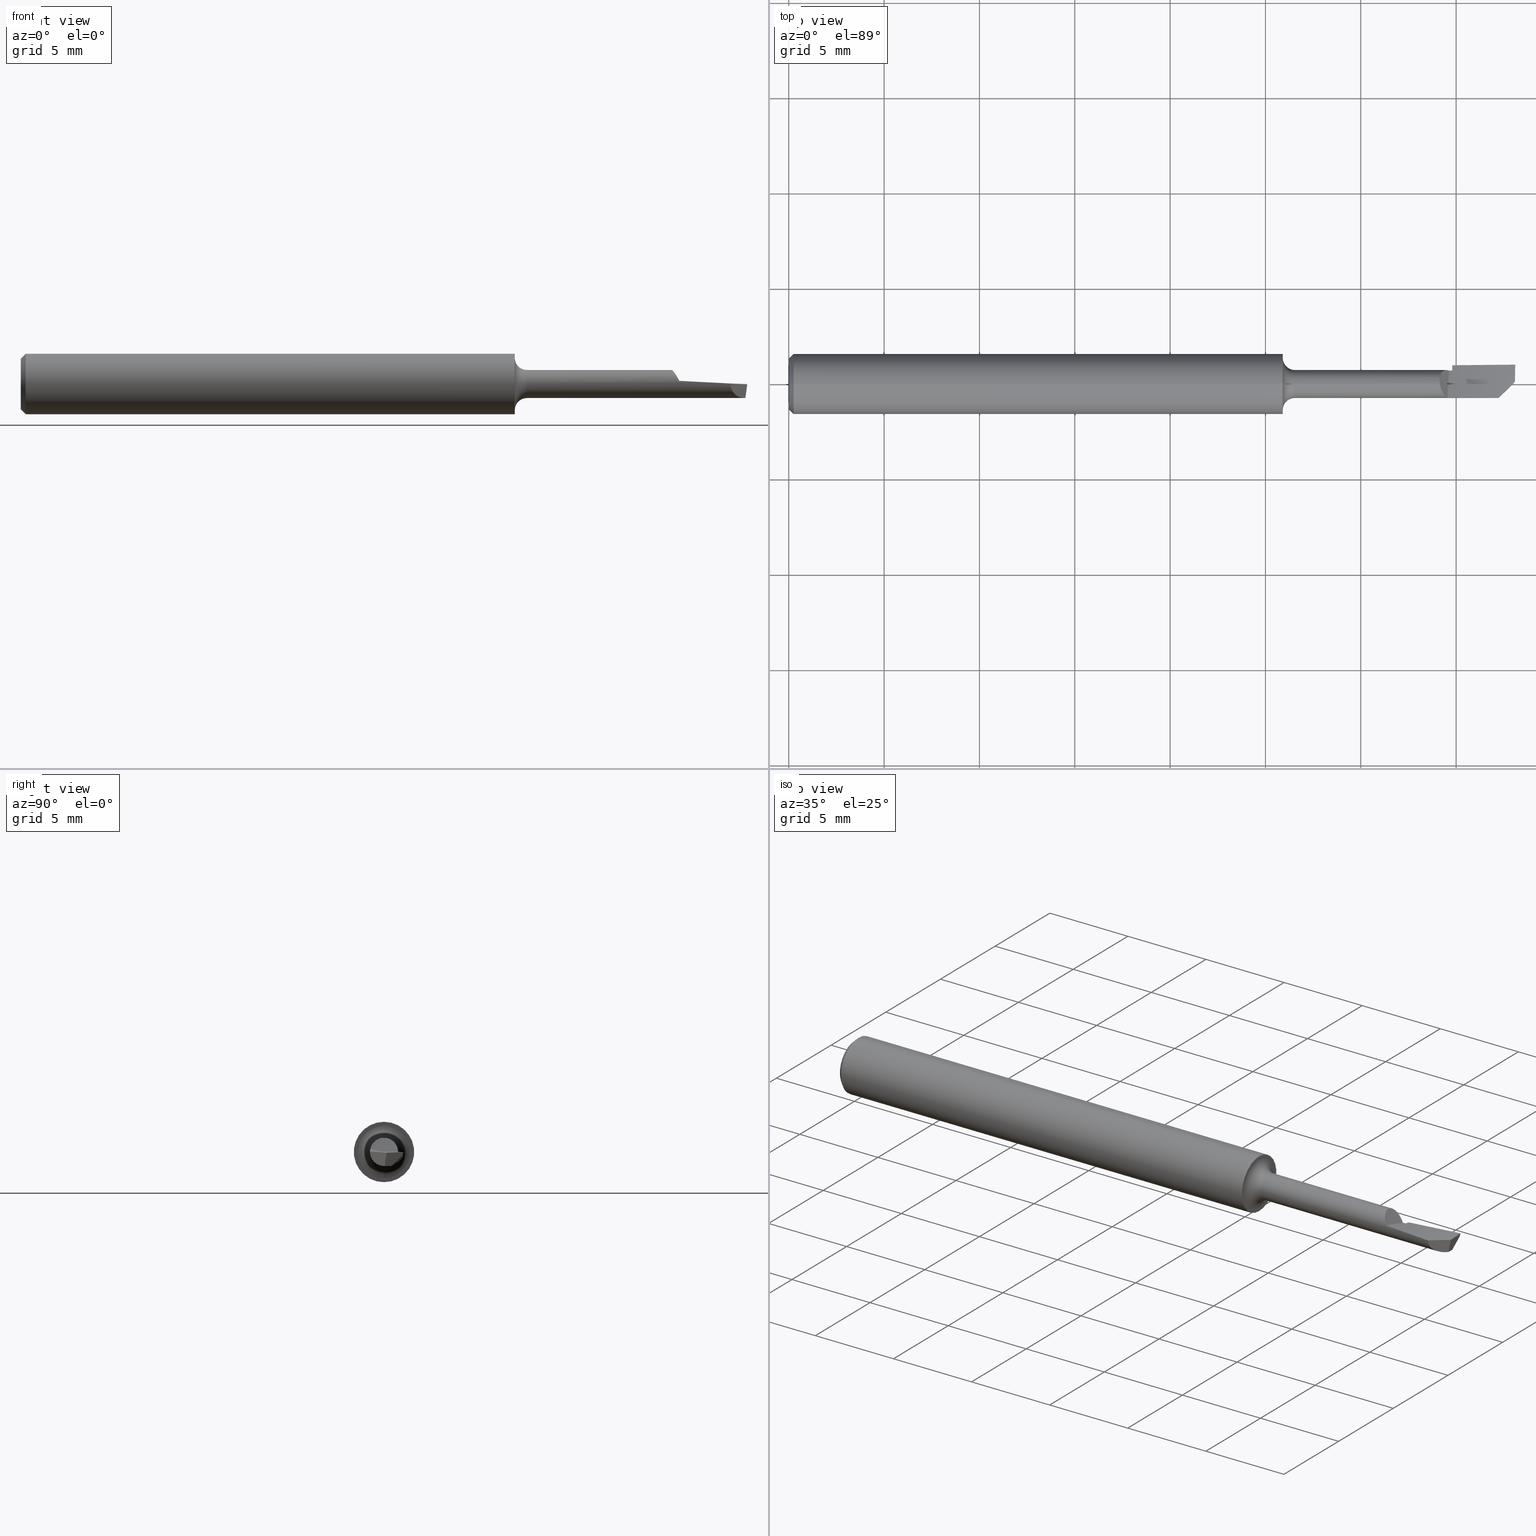
[diagram: canonical four-view strip — front | top / right | iso, engineering-drawing reading convention]
A machine part, canonical four-view strip (front | top / right | iso — engineering-drawing reading convention). The complete STEP part file that produces these views, byte-faithful:
ISO-10303-21;
HEADER;
FILE_DESCRIPTION (( 'STEP AP203' ),
    '1' );
FILE_NAME ('215988-HB70.STEP',
    '2024-08-12T21:30:40',
    ( '' ),
    ( '' ),
    'SwSTEP 2.0',
    'SolidWorks 2024',
    '' );
FILE_SCHEMA (( 'CONFIG_CONTROL_DESIGN' ));
ENDSEC;

DATA;
#1 = ORIENTED_EDGE ( 'NONE', *, *, #785, .T. ) ;
#2 = CARTESIAN_POINT ( 'NONE',  ( 0.05555555555555891090, -0.04000000000000000083, -4.898425415289509002E-18 ) ) ;
#3 = DIRECTION ( 'NONE',  ( 0.7071067811865461294, 8.659560562354950115E-17, 0.7071067811865489050 ) ) ;
#4 = CARTESIAN_POINT ( 'NONE',  ( 1.045000000000000373, 0.000000000000000000, 0.000000000000000000 ) ) ;
#5 = CARTESIAN_POINT ( 'NONE',  ( 0.8809523809523824855, 0.001447011921170035000, -0.03779748791122599511 ) ) ;
#6 = APPROVAL_ROLE ( '' ) ;
#7 = CARTESIAN_POINT ( 'NONE',  ( 1.175000000000000711, 0.1015806386774461834, -0.05416030337439214221 ) ) ;
#8 = DIRECTION ( 'NONE',  ( -1.000000000000000000, -0.000000000000000000, -0.000000000000000000 ) ) ;
#9 =( NAMED_UNIT ( * ) SI_UNIT ( $, .STERADIAN. ) SOLID_ANGLE_UNIT ( ) );
#10 = PERSON_AND_ORGANIZATION_ROLE ( 'design_supplier' ) ;
#11 = VERTEX_POINT ( 'NONE', #242 ) ;
#12 = CARTESIAN_POINT ( 'NONE',  ( 1.500000000000000000, -0.03809952085550567802, -0.005938488488639542470 ) ) ;
#13 = VERTEX_POINT ( 'NONE', #232 ) ;
#14 = LINE ( 'NONE', #81, #372 ) ;
#15 = EDGE_CURVE ( 'NONE', #383, #207, #676, .T. ) ;
#16 = CC_DESIGN_PERSON_AND_ORGANIZATION_ASSIGNMENT ( #555, #228, ( #752 ) ) ;
#17 = ORIENTED_EDGE ( 'NONE', *, *, #345, .T. ) ;
#18 = CARTESIAN_POINT ( 'NONE',  ( 1.347633158137484966, -0.01259069581526825292, 0.02618489251447412430 ) ) ;
#19 = CIRCLE ( 'NONE', #471, 0.02900000000000007086 ) ;
#20 = CARTESIAN_POINT ( 'NONE',  ( 1.351843152719554908, 0.02721280358920947010, 0.01011102640573735383 ) ) ;
#21 = CIRCLE ( 'NONE', #633, 0.02499999999999993894 ) ;
#22 = CARTESIAN_POINT ( 'NONE',  ( 1.370000000000000995, 0.02801306668690308962, -0.007501206222680386997 ) ) ;
#23 = B_SPLINE_CURVE_WITH_KNOTS ( 'NONE', 3,
 ( #263, #132, #554, #498, #258, #196, #428, #433, #507, #365, #677, #561, #315, #323, #20, #625, #558, #255, #441 ),
 .UNSPECIFIED., .F., .F.,
 ( 4, 2, 2, 2, 1, 1, 1, 2, 2, 2, 4 ),
 ( 0.000000000000000000, 0.2500000000000942579, 0.3750000000001443290, 0.4375000000001694755, 0.4687500000001820211, 0.4843750000001847411, 0.4921875000001861844, 0.4960937500001904032, 0.5000000000001946221, 0.7500000000000972555, 1.000000000000000000 ),
 .UNSPECIFIED. ) ;
#24 = VERTEX_POINT ( 'NONE', #235 ) ;
#25 = CYLINDRICAL_SURFACE ( 'NONE', #326, 0.06234999999999997489 ) ;
#26 = DIRECTION ( 'NONE',  ( -1.000000000000000000, -0.000000000000000000, -0.000000000000000000 ) ) ;
#27 = ORIENTED_EDGE ( 'NONE', *, *, #517, .F. ) ;
#28 = CARTESIAN_POINT ( 'NONE',  ( 1.435770711567972091, 0.04000000000000000777, -0.005683536644972281629 ) ) ;
#29 = CARTESIAN_POINT ( 'NONE',  ( 1.370000000000002105, 0.03163472708412574941, -0.008150383591435668429 ) ) ;
#30 = ORIENTED_EDGE ( 'NONE', *, *, #599, .T. ) ;
#31 = CARTESIAN_POINT ( 'NONE',  ( 1.500000000000000222, 0.04000000000000000083, 0.000000000000000000 ) ) ;
#32 = LINE ( 'NONE', #111, #581 ) ;
#33 = AXIS2_PLACEMENT_3D ( 'NONE', #250, #748, #491 ) ;
#34 = VERTEX_POINT ( 'NONE', #731 ) ;
#35 = CARTESIAN_POINT ( 'NONE',  ( -0.9761904761904703909, 0.02864906883118371883, 0.02469766772400545929 ) ) ;
#36 = CIRCLE ( 'NONE', #125, 0.04000000000000000083 ) ;
#37 = DIRECTION ( 'NONE',  ( -1.000000000000000000, -0.000000000000000000, -0.000000000000000000 ) ) ;
#38 = ORIENTED_EDGE ( 'NONE', *, *, #184, .F. ) ;
#39 = CARTESIAN_POINT ( 'NONE',  ( -0.3571428571428530430, -0.01770342807663131263, 0.03342652495002771534 ) ) ;
#40 = PLANE ( 'NONE',  #721 ) ;
#41 = CC_DESIGN_PERSON_AND_ORGANIZATION_ASSIGNMENT ( #667, #607, ( #681 ) ) ;
#42 = ORIENTED_EDGE ( 'NONE', *, *, #637, .T. ) ;
#43 = CARTESIAN_POINT ( 'NONE',  ( -0.6666666666666620777, 0.007180018042907871517, 0.03812775893959781393 ) ) ;
#44 = PERSON_AND_ORGANIZATION_ROLE ( 'design_owner' ) ;
#45 = DIRECTION ( 'NONE',  ( -0.7071067811865483499, -0.7071067811865467956, 0.000000000000000000 ) ) ;
#46 =( BOUNDED_CURVE ( )  B_SPLINE_CURVE ( 1, ( #779, #49 ),
 .UNSPECIFIED., .F., .T. ) 
 B_SPLINE_CURVE_WITH_KNOTS ( ( 2, 2 ),
 ( 0.002078555734266598204, 0.002706649194890225693 ),
 .UNSPECIFIED. ) 
 CURVE ( )  GEOMETRIC_REPRESENTATION_ITEM ( )  RATIONAL_B_SPLINE_CURVE ( ( 0.9882916646871111599, 0.9882916646871111599 ) ) 
 REPRESENTATION_ITEM ( '' )  );
#47 = ORIENTED_EDGE ( 'NONE', *, *, #493, .F. ) ;
#48 = CARTESIAN_POINT ( 'NONE',  ( 0.1587301587301617467, -0.03876952073988500225, -0.001484224528900523121 ) ) ;
#49 = CARTESIAN_POINT ( 'NONE',  ( 1.370000000000000995, 0.03375071523325731682, -0.01707727019001736152 ) ) ;
#50 = AXIS2_PLACEMENT_3D ( 'NONE', #417, #427, #538 ) ;
#51 = COORDINATED_UNIVERSAL_TIME_OFFSET ( 8, 0, .BEHIND. ) ;
#52 = ADVANCED_FACE ( 'NONE', ( #57 ), #419, .T. ) ;
#53 = CARTESIAN_POINT ( 'NONE',  ( 1.045000000000000373, 0.000000000000000000, 0.02900000000000007086 ) ) ;
#54 = CARTESIAN_POINT ( 'NONE',  ( 1.396825396825397192, -0.05697403369687401714, -0.07363607873360288048 ) ) ;
#55 = CARTESIAN_POINT ( 'NONE',  ( 0.9841269841269852936, 0.01007404188524794846, -0.03746721688285417629 ) ) ;
#56 = CARTESIAN_POINT ( 'NONE',  ( 0.000000000000000000, 0.000000000000000000, 0.000000000000000000 ) ) ;
#57 = FACE_OUTER_BOUND ( 'NONE', #697, .T. ) ;
#58 = CARTESIAN_POINT ( 'NONE',  ( 1.496221437132083665, 0.01505691397497161896, -0.02900000000000007086 ) ) ;
#59 = LINE ( 'NONE', #617, #594 ) ;
#60 = AXIS2_PLACEMENT_3D ( 'NONE', #595, #474, #541 ) ;
#61 = MANIFOLD_SOLID_BREP ( 'Front Angle', #792 ) ;
#62 = FACE_OUTER_BOUND ( 'NONE', #99, .T. ) ;
#63 = CARTESIAN_POINT ( 'NONE',  ( 1.087301587301588324, 0.01770342807663130916, -0.03342652495002772228 ) ) ;
#64 = APPLICATION_PROTOCOL_DEFINITION ( 'international standard', 'config_control_design', 1994, #707 ) ;
#65 = CARTESIAN_POINT ( 'NONE',  ( 1.496221437132083665, 0.01505691397497161896, -0.02900000000000007086 ) ) ;
#66 = ADVANCED_FACE ( 'NONE', ( #128 ), #249, .F. ) ;
#67 = CARTESIAN_POINT ( 'NONE',  ( 1.020000000000000240, 0.1123499999999999360, 0.000000000000000000 ) ) ;
#68 = CARTESIAN_POINT ( 'NONE',  ( 1.190476190476191576, 0.02533281426801466465, -0.02938583301720125787 ) ) ;
#69 = DATE_TIME_ROLE ( 'classification_date' ) ;
#70 = DIRECTION ( 'NONE',  ( -1.000000000000000000, -0.000000000000000000, -0.000000000000000000 ) ) ;
#71 = CARTESIAN_POINT ( 'NONE',  ( 1.500000000000000222, 0.03717181641915395102, -0.007000000000000001013 ) ) ;
#72 = DATE_TIME_ROLE ( 'creation_date' ) ;
#73 = B_SPLINE_CURVE_WITH_KNOTS ( 'NONE', 3,
 ( #425, #740, #203, #309 ),
 .UNSPECIFIED., .F., .F.,
 ( 4, 4 ),
 ( 0.000000000000000000, 1.000000000000000000 ),
 .UNSPECIFIED. ) ;
#74 = VERTEX_POINT ( 'NONE', #361 ) ;
#75 = CARTESIAN_POINT ( 'NONE',  ( 1.370000000000000773, 0.03889705483791568857, -0.009328404200943489488 ) ) ;
#76 = AXIS2_PLACEMENT_3D ( 'NONE', #302, #479, #743 ) ;
#77 = ADVANCED_FACE ( 'NONE', ( #62 ), #665, .F. ) ;
#78 = AXIS2_PLACEMENT_3D ( 'NONE', #652, #141, #206 ) ;
#79 = CARTESIAN_POINT ( 'NONE',  ( 1.465509546751889935, -0.02898045511657074830, 0.001064528645190079446 ) ) ;
#80 = ORIENTED_EDGE ( 'NONE', *, *, #282, .F. ) ;
#81 = CARTESIAN_POINT ( 'NONE',  ( 1.370000000000000329, 0.02900000000000000147, -0.02900000000000007086 ) ) ;
#82 = CC_DESIGN_PERSON_AND_ORGANIZATION_ASSIGNMENT ( #611, #10, ( #681 ) ) ;
#83 =( BOUNDED_SURFACE ( )  B_SPLINE_SURFACE ( 3, 2, ( 
 ( #364, #360, #135, #121, #602 ),
 ( #12, #739, #305, #194, #668 ),
 ( #357, #181, #476, #189, #727 ),
 ( #658, #612, #423, #7, #118 ) ),
 .UNSPECIFIED., .F., .F., .F. ) 
 B_SPLINE_SURFACE_WITH_KNOTS ( ( 4, 4 ),
 ( 3, 2, 3 ),
 ( 0.000000000000000000, 1.000000000000000000 ),
 ( 0.000000000000000000, 0.5000000000000000000, 1.000000000000000000 ),
 .UNSPECIFIED. ) 
 GEOMETRIC_REPRESENTATION_ITEM ( )  RATIONAL_B_SPLINE_SURFACE ( (
 ( 1.000000000000000000, 0.9807852804032304306, 1.000000000000000000, 0.9807852804032304306, 1.000000000000000000),
 ( 0.9829519941216796619, 0.9640648471775461470, 0.9829519941216796619, 0.9640648471775461470, 0.9829519941216796619),
 ( 0.9829519941216796619, 0.9640648471775461470, 0.9829519941216796619, 0.9640648471775461470, 0.9829519941216796619),
 ( 1.000000000000000000, 0.9807852804032304306, 1.000000000000000000, 0.9807852804032304306, 1.000000000000000000) ) ) 
 REPRESENTATION_ITEM ( '' )  SURFACE ( )  );
#84 = APPROVAL_DATE_TIME ( #694, #217 ) ;
#85 = ORIENTED_EDGE ( 'NONE', *, *, #237, .F. ) ;
#86 = PLANE ( 'NONE',  #440 ) ;
#87 = B_SPLINE_CURVE_WITH_KNOTS ( 'NONE', 3,
 ( #434, #683, #148, #382, #388, #378 ),
 .UNSPECIFIED., .F., .F.,
 ( 4, 2, 4 ),
 ( 0.9496888431844439094, 0.9748444215922219547, 1.000000000000000000 ),
 .UNSPECIFIED. ) ;
#88 = VERTEX_POINT ( 'NONE', #53 ) ;
#89 = DIRECTION ( 'NONE',  ( -1.000000000000000000, -0.000000000000000000, -0.000000000000000000 ) ) ;
#90 = CC_DESIGN_SECURITY_CLASSIFICATION ( #211, ( #681 ) ) ;
#91 = CARTESIAN_POINT ( 'NONE',  ( 1.496104123661977647, 0.001614121793516918668, -0.02900000000000007086 ) ) ;
#92 = LINE ( 'NONE', #693, #513 ) ;
#93 = VERTEX_POINT ( 'NONE', #533 ) ;
#94 = DIRECTION ( 'NONE',  ( 0.000000000000000000, -1.000000000000000000, 0.000000000000000000 ) ) ;
#95 = CARTESIAN_POINT ( 'NONE',  ( 1.366483144912173930, 0.02796552330872572115, -0.007678755777169924551 ) ) ;
#96 = ORIENTED_EDGE ( 'NONE', *, *, #459, .F. ) ;
#97 = CARTESIAN_POINT ( 'NONE',  ( 1.500000000000000222, 0.04000000000000000083, 0.000000000000000000 ) ) ;
#98 = CARTESIAN_POINT ( 'NONE',  ( 1.343999999999997641, 0.01736113023151577076, 0.02466362308646828649 ) ) ;
#99 = EDGE_LOOP ( 'NONE', ( #331, #313, #745, #85, #197 ) ) ;
#100 = CARTESIAN_POINT ( 'NONE',  ( -0.5634920634920589366, -0.001447011921170040204, 0.03779748791122599511 ) ) ;
#101 = CIRCLE ( 'NONE', #336, 0.06234999999999997489 ) ;
#102 = ADVANCED_FACE ( 'NONE', ( #240, #660 ), #477, .T. ) ;
#103 = CARTESIAN_POINT ( 'NONE',  ( 1.370000000000000107, 0.01208676131168339406, -0.02900000000000008127 ) ) ;
#104 = ORIENTED_EDGE ( 'NONE', *, *, #239, .T. ) ;
#105 = CARTESIAN_POINT ( 'NONE',  ( -1.079365079365073754, 0.03428615032184419154, 0.01815870471593352894 ) ) ;
#106 = DIRECTION ( 'NONE',  ( 0.000000000000000000, 0.000000000000000000, 1.000000000000000000 ) ) ;
#107 = ADVANCED_FACE ( 'NONE', ( #600 ), #182, .F. ) ;
#108 = ORIENTED_EDGE ( 'NONE', *, *, #493, .T. ) ;
#109 = CARTESIAN_POINT ( 'NONE',  ( 0.05555555555555891090, -0.03717181641915395102, 0.006999999999999996676 ) ) ;
#110 = DESIGN_CONTEXT ( 'detailed design', #161, 'design' ) ;
#111 = CARTESIAN_POINT ( 'NONE',  ( 0.01000000000000000021, 0.000000000000000000, -0.06235000000000000264 ) ) ;
#112 = EDGE_LOOP ( 'NONE', ( #369, #516 ) ) ;
#113 = CARTESIAN_POINT ( 'NONE',  ( 1.500000000000000222, 0.04000000000000000083, 0.000000000000000000 ) ) ;
#114 = ADVANCED_FACE ( 'NONE', ( #605 ), #486, .T. ) ;
#115 = VERTEX_POINT ( 'NONE', #566 ) ;
#116 = CARTESIAN_POINT ( 'NONE',  ( 1.087301587301588324, -0.08818753069738974326, -0.02149547931611790405 ) ) ;
#117 = CARTESIAN_POINT ( 'NONE',  ( 1.412082123250496091, 0.01272660337987287227, -0.02900000000000007086 ) ) ;
#118 = CARTESIAN_POINT ( 'NONE',  ( 1.066666666666667762, 0.08735133042885809274, -0.07153556330375904215 ) ) ;
#119 = CARTESIAN_POINT ( 'NONE',  ( 1.359812946886974183, -0.02825286555653415410, 0.006540304873964866011 ) ) ;
#120 = CARTESIAN_POINT ( 'NONE',  ( -0.5634920634920589366, -0.001447011921170040204, 0.03779748791122599511 ) ) ;
#121 = CARTESIAN_POINT ( 'NONE',  ( 1.175000000000000711, -0.08891082323312583802, 0.07312202218026980782 ) ) ;
#122 = EDGE_CURVE ( 'NONE', #24, #253, #73, .T. ) ;
#123 = DIRECTION ( 'NONE',  ( -0.7071067811865467956, 0.7071067811865483499, 0.000000000000000000 ) ) ;
#124 = CARTESIAN_POINT ( 'NONE',  ( 0.7777777777777796775, 2.512198775972656971E-18, -0.04102867453090215666 ) ) ;
#125 = AXIS2_PLACEMENT_3D ( 'NONE', #632, #756, #761 ) ;
#126 = CARTESIAN_POINT ( 'NONE',  ( 0.01000000000000000021, 7.635672792683746671E-18, 0.06235000000000000264 ) ) ;
#127 = EDGE_CURVE ( 'NONE', #445, #93, #682, .T. ) ;
#128 = FACE_OUTER_BOUND ( 'NONE', #334, .T. ) ;
#129 = CARTESIAN_POINT ( 'NONE',  ( -1.388888888888882400, 0.03717181641915395102, -0.007000000000000001013 ) ) ;
#130 = DIRECTION ( 'NONE',  ( -0.9925083585251990304, 0.008661489226065263378, 0.1218693434051474900 ) ) ;
#131 =( BOUNDED_CURVE ( )  B_SPLINE_CURVE ( 2, ( #390, #765, #208 ),
 .UNSPECIFIED., .F., .T. ) 
 B_SPLINE_CURVE_WITH_KNOTS ( ( 3, 3 ),
 ( 0.0003170804068850536107, 0.04489127974352288136 ),
 .UNSPECIFIED. ) 
 CURVE ( )  GEOMETRIC_REPRESENTATION_ITEM ( )  RATIONAL_B_SPLINE_CURVE ( ( 0.9997783918343574605, 0.9842713451966444982, 0.9882916646871111599 ) ) 
 REPRESENTATION_ITEM ( '' )  );
#132 = CARTESIAN_POINT ( 'NONE',  ( 1.344360962783671454, 0.01499331302564882798, 0.02504737014125070840 ) ) ;
#133 = CARTESIAN_POINT ( 'NONE',  ( 1.293650793650794162, 0.03045346318321878742, -0.02243502877305089335 ) ) ;
#134 = APPROVAL_STATUS ( 'not_yet_approved' ) ;
#135 = CARTESIAN_POINT ( 'NONE',  ( 1.283333333333334103, -0.09951814973318083568, 0.05332663141959952113 ) ) ;
#136 = EDGE_CURVE ( 'NONE', #455, #789, #481, .T. ) ;
#137 = ORIENTED_EDGE ( 'NONE', *, *, #345, .F. ) ;
#138 = DIRECTION ( 'NONE',  ( 0.000000000000000000, 0.000000000000000000, 1.000000000000000000 ) ) ;
#139 = CIRCLE ( 'NONE', #539, 0.02499999999999993894 ) ;
#140 =( BOUNDED_CURVE ( )  B_SPLINE_CURVE ( 2, ( #492, #95, #22 ),
 .UNSPECIFIED., .F., .T. ) 
 B_SPLINE_CURVE_WITH_KNOTS ( ( 3, 3 ),
 ( 0.6843654409706481090, 0.7004615063419189491 ),
 .UNSPECIFIED. ) 
 CURVE ( )  GEOMETRIC_REPRESENTATION_ITEM ( )  RATIONAL_B_SPLINE_CURVE ( ( 0.9792068466601346888, 0.9790463917204700328, 0.9789252863740102173 ) ) 
 REPRESENTATION_ITEM ( '' )  );
#141 = DIRECTION ( 'NONE',  ( -1.000000000000000000, -0.000000000000000000, -0.000000000000000000 ) ) ;
#142 = EDGE_LOOP ( 'NONE', ( #578, #156 ) ) ;
#143 = CARTESIAN_POINT ( 'NONE',  ( 1.020000000000000240, 0.000000000000000000, 0.000000000000000000 ) ) ;
#144 = CARTESIAN_POINT ( 'NONE',  ( 1.499482073662843584, 0.03835620992369383198, -0.004101183568616758278 ) ) ;
#145 = ORIENTED_EDGE ( 'NONE', *, *, #775, .F. ) ;
#146 = CARTESIAN_POINT ( 'NONE',  ( 1.344726164215734432, -0.003004772557673362522, 0.02899992847466936058 ) ) ;
#147 = CARTESIAN_POINT ( 'NONE',  ( 1.499852349702122556, 0.03953286335412243419, -0.001169269085852144962 ) ) ;
#148 = CARTESIAN_POINT ( 'NONE',  ( 1.344175667506401828, 0.0007500834462804991222, 0.02899269570108404734 ) ) ;
#149 = ORIENTED_EDGE ( 'NONE', *, *, #785, .F. ) ;
#150 = CARTESIAN_POINT ( 'NONE',  ( 1.370000000000003437, 0.03841683329958598542, -0.01114212364102202570 ) ) ;
#151 = ADVANCED_FACE ( 'NONE', ( #374 ), #439, .F. ) ;
#152 = VECTOR ( 'NONE', #3, 39.37007874015748143 ) ;
#153 = EDGE_LOOP ( 'NONE', ( #623, #755, #466, #627 ) ) ;
#154 = CARTESIAN_POINT ( 'NONE',  ( 1.499500392139578864, 0.005010390271118192115, -0.001582045523762461159 ) ) ;
#155 = CARTESIAN_POINT ( 'NONE',  ( 1.370000000000001439, 0.03526287220827594576, -0.008759464147967733344 ) ) ;
#156 = ORIENTED_EDGE ( 'NONE', *, *, #571, .T. ) ;
#157 = CARTESIAN_POINT ( 'NONE',  ( 0.2619047619047648601, -0.001332971076926094687, 0.09075967931653784737 ) ) ;
#158 = B_SPLINE_CURVE_WITH_KNOTS ( 'NONE', 3,
 ( #573, #564, #636, #318, #269, #384, #568, #699, #576, #200, #18, #332, #438, #146, #449 ),
 .UNSPECIFIED., .F., .F.,
 ( 4, 2, 2, 2, 1, 2, 2, 4 ),
 ( 0.000000000000000000, 0.2374222107961167783, 0.4748444215922335565, 0.5045221979417481295, 0.5341999742912627580, 0.5935555269902860198, 0.7122666323883386497, 0.9496888431844439094 ),
 .UNSPECIFIED. ) ;
#159 = EDGE_CURVE ( 'NONE', #24, #383, #23, .T. ) ;
#160 = CARTESIAN_POINT ( 'NONE',  ( 1.360835649877186748, -0.01054141025922300003, 0.0006367957585307692332 ) ) ;
#161 = APPLICATION_CONTEXT ( 'configuration controlled 3d designs of mechanical parts and assemblies' ) ;
#162 = EDGE_CURVE ( 'NONE', #213, #13, #391, .T. ) ;
#163 = CARTESIAN_POINT ( 'NONE',  ( 0.3650793650793676681, -0.03428615032184419847, -0.01815870471593352548 ) ) ;
#164 = CARTESIAN_POINT ( 'NONE',  ( 1.465509546751889935, -0.02898045511657074830, 0.001064528645190079446 ) ) ;
#165 = LOCAL_TIME ( 14, 30, 40.00000000000000000, #171 ) ;
#166 = CARTESIAN_POINT ( 'NONE',  ( 1.465509546751889935, -0.02898045511657074830, 0.001064528645190079446 ) ) ;
#167 = CARTESIAN_POINT ( 'NONE',  ( 0.5714285714285736173, -0.02301198734052324960, -0.03123663073207738616 ) ) ;
#168 = LINE ( 'NONE', #763, #262 ) ;
#169 = ORIENTED_EDGE ( 'NONE', *, *, #159, .T. ) ;
#170 = CARTESIAN_POINT ( 'NONE',  ( -1.285714285714279148, 0.03876952073988499531, 0.001484224528900528976 ) ) ;
#171 = COORDINATED_UNIVERSAL_TIME_OFFSET ( 8, 0, .BEHIND. ) ;
#172 = UNCERTAINTY_MEASURE_WITH_UNIT (LENGTH_MEASURE( 1.000000000000000082E-05 ), #267, 'distance_accuracy_value', 'NONE');
#173 = VERTEX_POINT ( 'NONE', #91 ) ;
#174 = CARTESIAN_POINT ( 'NONE',  ( -0.7698412698412646638, 0.07178986850100783912, -0.05554557572067023857 ) ) ;
#175 = CALENDAR_DATE ( 2024, 12, 8 ) ;
#176 = CARTESIAN_POINT ( 'NONE',  ( 0.01000000000000000021, 0.000000000000000000, 0.000000000000000000 ) ) ;
#177 = AXIS2_PLACEMENT_3D ( 'NONE', #501, #8, #621 ) ;
#178 = B_SPLINE_SURFACE_WITH_KNOTS ( 'NONE', 1, 3, ( 
 ( #701, #515, #98, #333 ),
 ( #587, #160, #577, #649 ) ),
 .UNSPECIFIED., .F., .F., .F.,
 ( 2, 2 ),
 ( 4, 4 ),
 ( 0.000000000000000000, 1.000000000000000000 ),
 ( 0.002462417689839131296, 0.004008019908596999539 ),
 .UNSPECIFIED. ) ;
#179 = DIRECTION ( 'NONE',  ( 0.000000000000000000, 0.000000000000000000, 1.000000000000000000 ) ) ;
#180 = CARTESIAN_POINT ( 'NONE',  ( -0.8730158730158678049, 0.01780167471650514685, 0.03696555844364372845 ) ) ;
#181 = CARTESIAN_POINT ( 'NONE',  ( 1.391666666666667052, 0.03691828205157376280, -0.01351695437803885139 ) ) ;
#182 = PLANE ( 'NONE',  #410 ) ;
#183 = CARTESIAN_POINT ( 'NONE',  ( 0.1587301587301617467, -0.04000000000000000083, -0.009129738975606004059 ) ) ;
#184 = EDGE_CURVE ( 'NONE', #453, #268, #604, .T. ) ;
#185 = CARTESIAN_POINT ( 'NONE',  ( 1.020000000000000462, 0.000000000000000000, 0.000000000000000000 ) ) ;
#186 = CARTESIAN_POINT ( 'NONE',  ( -0.8730158730158678049, 0.02301198734052324960, 0.03123663073207738616 ) ) ;
#187 = APPROVAL_DATE_TIME ( #616, #726 ) ;
#188 = AXIS2_PLACEMENT_3D ( 'NONE', #431, #680, #138 ) ;
#189 = CARTESIAN_POINT ( 'NONE',  ( 1.175000000000000933, 0.02893533066641755871, -0.02661605238427766640 ) ) ;
#190 =( BOUNDED_CURVE ( )  B_SPLINE_CURVE ( 2, ( #370, #28, #696 ),
 .UNSPECIFIED., .F., .T. ) 
 B_SPLINE_CURVE_WITH_KNOTS ( ( 3, 3 ),
 ( 0.000000000000000000, 0.04489127974352208339 ),
 .UNSPECIFIED. ) 
 CURVE ( )  GEOMETRIC_REPRESENTATION_ITEM ( )  RATIONAL_B_SPLINE_CURVE ( ( 1.000000000000000000, 0.9842427464880012522, 0.9882916646871109378 ) ) 
 REPRESENTATION_ITEM ( '' )  );
#191 = DIRECTION ( 'NONE',  ( 0.000000000000000000, 0.000000000000000000, 1.000000000000000000 ) ) ;
#192 = CARTESIAN_POINT ( 'NONE',  ( -0.04761904761904422329, -0.04000000000000000083, 0.009129738975605993651 ) ) ;
#193 = EDGE_CURVE ( 'NONE', #173, #74, #168, .T. ) ;
#194 = CARTESIAN_POINT ( 'NONE',  ( 1.175000000000000933, -0.03566309769012571823, 0.01654723748672481259 ) ) ;
#195 = CC_DESIGN_DATE_AND_TIME_ASSIGNMENT ( #363, #69, ( #211 ) ) ;
#196 = CARTESIAN_POINT ( 'NONE',  ( 1.348826993607886049, 0.02449701040838764970, 0.01554878266840352408 ) ) ;
#197 = ORIENTED_EDGE ( 'NONE', *, *, #553, .T. ) ;
#198 = CARTESIAN_POINT ( 'NONE',  ( 1.045000000000000373, 0.000000000000000000, 0.000000000000000000 ) ) ;
#199 = ORIENTED_EDGE ( 'NONE', *, *, #626, .T. ) ;
#200 = CARTESIAN_POINT ( 'NONE',  ( 1.348641358214019315, -0.01492363627752968554, 0.02488129085342630220 ) ) ;
#201 = CIRCLE ( 'NONE', #582, 0.05234999999999996600 ) ;
#202 = AXIS2_PLACEMENT_3D ( 'NONE', #327, #26, #191 ) ;
#203 = CARTESIAN_POINT ( 'NONE',  ( 1.343999999999999417, 0.005462478541139549615, 0.02804805163909921545 ) ) ;
#204 = VERTEX_POINT ( 'NONE', #525 ) ;
#205 = CARTESIAN_POINT ( 'NONE',  ( 0.000000000000000000, 7.635672792683743590E-18, -0.06234999999999997489 ) ) ;
#206 = DIRECTION ( 'NONE',  ( 0.000000000000000000, 0.000000000000000000, 1.000000000000000000 ) ) ;
#207 = VERTEX_POINT ( 'NONE', #216 ) ;
#208 = CARTESIAN_POINT ( 'NONE',  ( 1.370000000000000995, 0.03375071523325731682, -0.01707727019001736152 ) ) ;
#209 = EDGE_LOOP ( 'NONE', ( #411, #711, #443, #572, #324, #436, #695 ) ) ;
#210 = CARTESIAN_POINT ( 'NONE',  ( 1.370000000000000773, 0.03889705483791568857, -0.009328404200943489488 ) ) ;
#211 = SECURITY_CLASSIFICATION ( '', '', #484 ) ;
#212 = AXIS2_PLACEMENT_3D ( 'NONE', #720, #706, #106 ) ;
#213 = VERTEX_POINT ( 'NONE', #452 ) ;
#214 = CARTESIAN_POINT ( 'NONE',  ( 0.1587301587301617467, 0.01938233346481633632, 0.09106392126639703544 ) ) ;
#215 = EDGE_CURVE ( 'NONE', #173, #789, #403, .T. ) ;
#216 = CARTESIAN_POINT ( 'NONE',  ( 1.359812946886974183, -0.02825286555653415410, 0.006540304873964866011 ) ) ;
#217 = APPROVAL ( #307, 'UNSPECIFIED' ) ;
#218 = VERTEX_POINT ( 'NONE', #103 ) ;
#219 = CARTESIAN_POINT ( 'NONE',  ( 1.190476190476191576, 0.02533281426801466465, -0.02938583301720125787 ) ) ;
#220 = CARTESIAN_POINT ( 'NONE',  ( 1.045000000000000373, 6.613092715395708083E-18, -0.05400000000000000633 ) ) ;
#221 = DIRECTION ( 'NONE',  ( 1.000000000000000000, 0.000000000000000000, 0.000000000000000000 ) ) ;
#222 = PERSON ( 'UNSPECIFIED', 'UNSPECIFIED', 'UNSPECIFIED', ('UNSPECIFIED'), ('UNSPECIFIED'), ('UNSPECIFIED') ) ;
#223 = ORIENTED_EDGE ( 'NONE', *, *, #122, .F. ) ;
#224 = CARTESIAN_POINT ( 'NONE',  ( -1.079365079365073754, 0.02204827561866853219, -0.09045543736667864543 ) ) ;
#225 = AXIS2_PLACEMENT_3D ( 'NONE', #176, #241, #630 ) ;
#226 = CONICAL_SURFACE ( 'NONE', #301, 0.06235000000000000264, 0.7853981633974502774 ) ;
#227 = CARTESIAN_POINT ( 'NONE',  ( -0.04761904761904422329, 0.05697403369687400326, 0.07363607873360288048 ) ) ;
#228 = PERSON_AND_ORGANIZATION_ROLE ( 'creator' ) ;
#229 = ORIENTED_EDGE ( 'NONE', *, *, #543, .F. ) ;
#230 = CARTESIAN_POINT ( 'NONE',  ( -1.388888888888882400, 0.03717181641915395102, -0.007000000000000001013 ) ) ;
#231 = CALENDAR_DATE ( 2024, 12, 8 ) ;
#232 = CARTESIAN_POINT ( 'NONE',  ( 1.500000000000000222, 0.04000000000000000083, 0.000000000000000000 ) ) ;
#233 = CARTESIAN_POINT ( 'NONE',  ( 1.190476190476191576, 0.03207750943219353501, -0.02558096015379865765 ) ) ;
#234 = CARTESIAN_POINT ( 'NONE',  ( 1.476798262906834136, -0.01769173896162653387, -0.0009050575358411995551 ) ) ;
#235 = CARTESIAN_POINT ( 'NONE',  ( 1.344000000000000306, 0.01194798285641748316, 0.02642433926634223107 ) ) ;
#236 = CARTESIAN_POINT ( 'NONE',  ( 0.3650793650793676681, -0.03428615032184419847, -0.01815870471593352548 ) ) ;
#237 = EDGE_CURVE ( 'NONE', #268, #789, #281, .T. ) ;
#238 = PLANE ( 'NONE',  #489 ) ;
#239 = EDGE_CURVE ( 'NONE', #268, #536, #337, .T. ) ;
#240 = FACE_BOUND ( 'NONE', #563, .T. ) ;
#241 = DIRECTION ( 'NONE',  ( 1.000000000000000000, 0.000000000000000000, 0.000000000000000000 ) ) ;
#242 = CARTESIAN_POINT ( 'NONE',  ( 1.020000000000000240, 0.000000000000000000, 0.06234999999999997489 ) ) ;
#243 = CARTESIAN_POINT ( 'NONE',  ( 0.6746031746031765364, -0.01509600269171556403, -0.03468219483583759311 ) ) ;
#244 = DATE_AND_TIME ( #231, #503 ) ;
#245 = DIRECTION ( 'NONE',  ( -1.000000000000000000, -0.000000000000000000, -0.000000000000000000 ) ) ;
#246 = DIRECTION ( 'NONE',  ( 1.000000000000000000, 0.000000000000000000, -0.000000000000000000 ) ) ;
#247 = CARTESIAN_POINT ( 'NONE',  ( -1.079365079365073754, 0.03207750943219352807, 0.02558096015379866459 ) ) ;
#248 = FACE_OUTER_BOUND ( 'NONE', #112, .T. ) ;
#249 = TOROIDAL_SURFACE ( 'NONE', #371, 0.05400000000000000633, 0.02499999999999993894 ) ;
#250 = CARTESIAN_POINT ( 'NONE',  ( 1.045000000000000373, 0.000000000000000000, 0.000000000000000000 ) ) ;
#251 = CARTESIAN_POINT ( 'NONE',  ( 1.494490001868460816, 1.707404996040164512E-17, -0.02900000000000007086 ) ) ;
#252 = PERSON_AND_ORGANIZATION ( #222, #685 ) ;
#253 = VERTEX_POINT ( 'NONE', #447 ) ;
#254 = FACE_OUTER_BOUND ( 'NONE', #522, .T. ) ;
#255 = CARTESIAN_POINT ( 'NONE',  ( 1.359724827283130377, 0.02932526709454047129, -0.002847079724959575633 ) ) ;
#256 = ORIENTED_EDGE ( 'NONE', *, *, #553, .F. ) ;
#257 = DIRECTION ( 'NONE',  ( 0.000000000000000000, 0.000000000000000000, -1.000000000000000000 ) ) ;
#258 = CARTESIAN_POINT ( 'NONE',  ( 1.347622489973717697, 0.02292405174080325986, 0.01785946520634259030 ) ) ;
#259 = ORIENTED_EDGE ( 'NONE', *, *, #322, .F. ) ;
#260 = DIRECTION ( 'NONE',  ( -0.000000000000000000, 0.000000000000000000, 1.000000000000000000 ) ) ;
#261 = EDGE_CURVE ( 'NONE', #453, #510, #424, .T. ) ;
#262 = VECTOR ( 'NONE', #574, 39.37007874015748143 ) ;
#263 = CARTESIAN_POINT ( 'NONE',  ( 1.344000000000000306, 0.01194798285641748316, 0.02642433926634223107 ) ) ;
#264 = CARTESIAN_POINT ( 'NONE',  ( 1.370000000000000995, 0.03375071523325731682, -0.01707727019001736152 ) ) ;
#265 = ORIENTED_EDGE ( 'NONE', *, *, #520, .T. ) ;
#266 = DIRECTION ( 'NONE',  ( -1.000000000000000000, -0.000000000000000000, -0.000000000000000000 ) ) ;
#267 =( CONVERSION_BASED_UNIT ( 'INCH', #622 ) LENGTH_UNIT ( ) NAMED_UNIT ( #770 ) );
#268 = VERTEX_POINT ( 'NONE', #759 ) ;
#269 = CARTESIAN_POINT ( 'NONE',  ( 1.351339622621704484, -0.02006848466437484782, 0.02105972589682419266 ) ) ;
#270 = ADVANCED_FACE ( 'NONE', ( #271 ), #178, .T. ) ;
#271 = FACE_OUTER_BOUND ( 'NONE', #641, .T. ) ;
#272 = EDGE_LOOP ( 'NONE', ( #328, #504, #704, #506 ) ) ;
#273 = EDGE_LOOP ( 'NONE', ( #42, #546, #781, #265, #430 ) ) ;
#274 = CARTESIAN_POINT ( 'NONE',  ( -0.8730158730158678049, 0.05911195331152090809, -0.07193114473335227022 ) ) ;
#275 = CARTESIAN_POINT ( 'NONE',  ( 1.499500392139578864, 0.005010390271118192115, -0.001582045523762461159 ) ) ;
#276 = ORIENTED_EDGE ( 'NONE', *, *, #774, .T. ) ;
#277 = CARTESIAN_POINT ( 'NONE',  ( 0.8809523809523824855, -0.08878075863533842205, 0.01889637789806528773 ) ) ;
#278 = CARTESIAN_POINT ( 'NONE',  ( 1.020000000000000240, 0.000000000000000000, 0.000000000000000000 ) ) ;
#279 = VERTEX_POINT ( 'NONE', #394 ) ;
#280 = CARTESIAN_POINT ( 'NONE',  ( -0.4603174603174559620, -0.01007404188524795192, 0.03746721688285417629 ) ) ;
#281 = LINE ( 'NONE', #387, #618 ) ;
#282 = EDGE_CURVE ( 'NONE', #204, #93, #32, .T. ) ;
#283 = AXIS2_PLACEMENT_3D ( 'NONE', #278, #783, #470 ) ;
#284 = ORIENTED_EDGE ( 'NONE', *, *, #528, .T. ) ;
#285 = CARTESIAN_POINT ( 'NONE',  ( -1.285714285714279148, -0.01938233346481632244, -0.09106392126639702156 ) ) ;
#286 = CARTESIAN_POINT ( 'NONE',  ( 1.488128444038904874, -0.006361557829556374437, -0.001789906198651234747 ) ) ;
#287 = APPLICATION_PROTOCOL_DEFINITION ( 'international standard', 'config_control_design', 1994, #161 ) ;
#288 = ORIENTED_EDGE ( 'NONE', *, *, #659, .T. ) ;
#289 = CARTESIAN_POINT ( 'NONE',  ( 1.190476190476191576, -0.08328132781459740563, -0.04162370772037814193 ) ) ;
#290 = PRODUCT_DEFINITION_SHAPE ( 'NONE', 'NONE',  #752 ) ;
#291 = ADVANCED_FACE ( 'NONE', ( #769 ), #226, .T. ) ;
#292 = ORIENTED_EDGE ( 'NONE', *, *, #700, .F. ) ;
#293 = CARTESIAN_POINT ( 'NONE',  ( -0.6666666666666620777, 0.007180018042907871517, 0.03812775893959781393 ) ) ;
#294 = DIRECTION ( 'NONE',  ( 0.000000000000000000, 0.000000000000000000, 1.000000000000000000 ) ) ;
#295 = EDGE_CURVE ( 'NONE', #455, #207, #757, .T. ) ;
#296 = CC_DESIGN_PERSON_AND_ORGANIZATION_ASSIGNMENT ( #252, #44, ( #409 ) ) ;
#297 = CYLINDRICAL_SURFACE ( 'NONE', #735, 0.02900000000000003617 ) ;
#298 = CC_DESIGN_APPROVAL ( #217, ( #211 ) ) ;
#299 = CARTESIAN_POINT ( 'NONE',  ( 1.362968313061897030, 0.02791573318773603665, -0.007855688422431681209 ) ) ;
#300 = CARTESIAN_POINT ( 'NONE',  ( 1.370000000000000995, 0.03375071523325731682, -0.01707727019001736152 ) ) ;
#301 = AXIS2_PLACEMENT_3D ( 'NONE', #342, #221, #458 ) ;
#302 = CARTESIAN_POINT ( 'NONE',  ( 1.020000000000000462, 0.000000000000000000, 0.000000000000000000 ) ) ;
#303 = CARTESIAN_POINT ( 'NONE',  ( 1.293650793650794162, 0.03603875471609676445, -0.01735534956470232565 ) ) ;
#304 = PERSON_AND_ORGANIZATION ( #222, #685 ) ;
#305 = CARTESIAN_POINT ( 'NONE',  ( 1.283333333333333881, -0.03747192867478175982, 0.009093607443742279112 ) ) ;
#306 = CARTESIAN_POINT ( 'NONE',  ( 0.7777777777777796775, -0.007180018042907878456, -0.03812775893959781393 ) ) ;
#307 = APPROVAL_STATUS ( 'not_yet_approved' ) ;
#308 = DIRECTION ( 'NONE',  ( 0.000000000000000000, 0.000000000000000000, 1.000000000000000000 ) ) ;
#309 = CARTESIAN_POINT ( 'NONE',  ( 1.344000000000000306, 0.002234151730270185661, 0.02891381272067267139 ) ) ;
#310 = CARTESIAN_POINT ( 'NONE',  ( -0.04761904761904422329, -0.03557411209842290672, 0.01548422452890051843 ) ) ;
#311 = LOCAL_TIME ( 14, 30, 40.00000000000000000, #407 ) ;
#312 = DATE_AND_TIME ( #464, #311 ) ;
#313 = ORIENTED_EDGE ( 'NONE', *, *, #465, .T. ) ;
#314 = CARTESIAN_POINT ( 'NONE',  ( 1.499106656297956919, 0.03715791315921924270, -0.007073430960375957921 ) ) ;
#315 = CARTESIAN_POINT ( 'NONE',  ( 1.351082740088656475, 0.02664559147929404515, 0.01144622539910868965 ) ) ;
#316 = DIRECTION ( 'NONE',  ( -1.000000000000000000, -0.000000000000000000, -0.000000000000000000 ) ) ;
#317 = ORIENTED_EDGE ( 'NONE', *, *, #788, .T. ) ;
#318 = CARTESIAN_POINT ( 'NONE',  ( 1.352629411863615516, -0.02204390430116667798, 0.01911207971779663867 ) ) ;
#319 = CARTESIAN_POINT ( 'NONE',  ( 1.494490001868460816, 1.707404996040164512E-17, -0.02900000000000007086 ) ) ;
#320 = EDGE_LOOP ( 'NONE', ( #256, #38, #346, #199, #149, #462 ) ) ;
#321 = FACE_OUTER_BOUND ( 'NONE', #619, .T. ) ;
#322 = EDGE_CURVE ( 'NONE', #115, #88, #664, .T. ) ;
#323 = CARTESIAN_POINT ( 'NONE',  ( 1.351134900953135265, 0.02668471954386657241, 0.01135456625681333272 ) ) ;
#324 = ORIENTED_EDGE ( 'NONE', *, *, #15, .T. ) ;
#325 = DIRECTION ( 'NONE',  ( 0.000000000000000000, 0.000000000000000000, 1.000000000000000000 ) ) ;
#326 = AXIS2_PLACEMENT_3D ( 'NONE', #690, #266, #687 ) ;
#327 = CARTESIAN_POINT ( 'NONE',  ( 1.370000000000000329, 0.000000000000000000, 0.000000000000000000 ) ) ;
#328 = ORIENTED_EDGE ( 'NONE', *, *, #215, .F. ) ;
#329 = DIRECTION ( 'NONE',  ( 0.000000000000000000, 0.000000000000000000, -1.000000000000000000 ) ) ;
#330 = ADVANCED_FACE ( 'NONE', ( #717 ), #297, .T. ) ;
#331 = ORIENTED_EDGE ( 'NONE', *, *, #749, .T. ) ;
#332 = CARTESIAN_POINT ( 'NONE',  ( 1.347036078512088064, -0.01099654640964824355, 0.02688729779582001850 ) ) ;
#333 = CARTESIAN_POINT ( 'NONE',  ( 1.344000000000000750, 0.03728623035711039341, 0.02100644876180573703 ) ) ;
#334 = EDGE_LOOP ( 'NONE', ( #137, #550, #350, #736 ) ) ;
#335 = CARTESIAN_POINT ( 'NONE',  ( 0.7777777777777796775, -0.08446778369049477708, 0.03916000670798823469 ) ) ;
#336 = AXIS2_PLACEMENT_3D ( 'NONE', #143, #746, #257 ) ;
#337 = LINE ( 'NONE', #766, #451 ) ;
#338 = LOCAL_TIME ( 14, 30, 40.00000000000000000, #684 ) ;
#339 = ORIENTED_EDGE ( 'NONE', *, *, #459, .T. ) ;
#340 = CARTESIAN_POINT ( 'NONE',  ( 1.293650793650794162, -0.07012768075573570792, -0.05762989322699050426 ) ) ;
#341 = CARTESIAN_POINT ( 'NONE',  ( 1.362968313061897030, 0.02791573318773603665, -0.007855688422431681209 ) ) ;
#342 = CARTESIAN_POINT ( 'NONE',  ( 0.01000000000000000021, 0.000000000000000000, 0.000000000000000000 ) ) ;
#343 = ORIENTED_EDGE ( 'NONE', *, *, #775, .T. ) ;
#344 = CARTESIAN_POINT ( 'NONE',  ( 1.500000000000000222, -0.03817818358084518193, -0.08234999999999996489 ) ) ;
#345 = EDGE_CURVE ( 'NONE', #375, #536, #21, .T. ) ;
#346 = ORIENTED_EDGE ( 'NONE', *, *, #261, .T. ) ;
#347 = CARTESIAN_POINT ( 'NONE',  ( 0.000000000000000000, 0.000000000000000000, 0.000000000000000000 ) ) ;
#348 = CARTESIAN_POINT ( 'NONE',  ( -0.04761904761904422329, -0.03557411209842290672, 0.01548422452890051843 ) ) ;
#349 = EDGE_CURVE ( 'NONE', #218, #751, #46, .T. ) ;
#350 = ORIENTED_EDGE ( 'NONE', *, *, #700, .T. ) ;
#351 = CARTESIAN_POINT ( 'NONE',  ( 1.454154305762139332, 0.01378533457836825064, -0.02900000000000007780 ) ) ;
#352 = EDGE_CURVE ( 'NONE', #74, #455, #656, .T. ) ;
#353 = CYLINDRICAL_SURFACE ( 'NONE', #50, 0.02900000000000003617 ) ;
#354 = APPROVAL ( #738, 'UNSPECIFIED' ) ;
#355 = DIRECTION ( 'NONE',  ( 0.000000000000000000, 0.000000000000000000, -1.000000000000000000 ) ) ;
#356 = CARTESIAN_POINT ( 'NONE',  ( -0.6666666666666620777, -7.536596327917969758E-18, 0.04102867453090215666 ) ) ;
#357 = CARTESIAN_POINT ( 'NONE',  ( 1.500000000000000000, 0.03809952085550589312, -0.005938488488639519919 ) ) ;
#358 = CARTESIAN_POINT ( 'NONE',  ( -0.3571428571428530430, -0.02493959207434934960, 0.03127325929872118437 ) ) ;
#359 = VECTOR ( 'NONE', #45, 39.37007874015748143 ) ;
#360 = CARTESIAN_POINT ( 'NONE',  ( 1.391666666666667052, -0.1101254762332358333, 0.03353124065892923444 ) ) ;
#361 = CARTESIAN_POINT ( 'NONE',  ( 1.499500392139578864, 0.005010390271118192115, -0.001582045523762461159 ) ) ;
#362 = CARTESIAN_POINT ( 'NONE',  ( 1.087301587301588324, 0.02493959207434934613, -0.03127325929872119131 ) ) ;
#363 = DATE_AND_TIME ( #671, #165 ) ;
#364 = CARTESIAN_POINT ( 'NONE',  ( 1.500000000000000222, -0.1123499999999997279, 0.01118343618382471212 ) ) ;
#365 = CARTESIAN_POINT ( 'NONE',  ( 1.350709363172423183, 0.02635427538254515520, 0.01210590748210442838 ) ) ;
#366 = CARTESIAN_POINT ( 'NONE',  ( 0.4682539682539705872, -0.02864906883118372230, -0.02469766772400545582 ) ) ;
#367 = DIRECTION ( 'NONE',  ( 0.000000000000000000, 0.000000000000000000, 1.000000000000000000 ) ) ;
#368 = LINE ( 'NONE', #126, #152 ) ;
#369 = ORIENTED_EDGE ( 'NONE', *, *, #517, .T. ) ;
#370 = CARTESIAN_POINT ( 'NONE',  ( 1.500000000000000222, 0.04000000000000000083, 0.000000000000000000 ) ) ;
#371 = AXIS2_PLACEMENT_3D ( 'NONE', #4, #724, #179 ) ;
#372 = VECTOR ( 'NONE', #376, 39.37007874015748143 ) ;
#373 = EDGE_CURVE ( 'NONE', #11, #34, #644, .T. ) ;
#374 = FACE_OUTER_BOUND ( 'NONE', #679, .T. ) ;
#375 = VERTEX_POINT ( 'NONE', #519 ) ;
#376 = DIRECTION ( 'NONE',  ( 0.000000000000000000, 1.000000000000000000, 0.000000000000000000 ) ) ;
#377 = EDGE_CURVE ( 'NONE', #88, #536, #386, .T. ) ;
#378 = CARTESIAN_POINT ( 'NONE',  ( 1.344000000000000306, 0.002234151730270185661, 0.02891381272067267139 ) ) ;
#379 = ORIENTED_EDGE ( 'NONE', *, *, #237, .T. ) ;
#380 = CARTESIAN_POINT ( 'NONE',  ( 1.370000000000000329, 0.02900000000000000147, 0.000000000000000000 ) ) ;
#381 = CARTESIAN_POINT ( 'NONE',  ( 1.500000000000000222, 0.04000000000000000083, 0.000000000000000000 ) ) ;
#382 = CARTESIAN_POINT ( 'NONE',  ( 1.344081522667952333, 0.001495256800732760408, 0.02896382634065988726 ) ) ;
#383 = VERTEX_POINT ( 'NONE', #341 ) ;
#384 = CARTESIAN_POINT ( 'NONE',  ( 1.350216892744017683, -0.01806687995065799426, 0.02268633897093913152 ) ) ;
#385 = CIRCLE ( 'NONE', #435, 0.06235000000000000264 ) ;
#386 = CIRCLE ( 'NONE', #212, 0.02900000000000007086 ) ;
#387 = CARTESIAN_POINT ( 'NONE',  ( 1.300000000000000044, 0.000000000000000000, -0.02900000000000007086 ) ) ;
#388 = CARTESIAN_POINT ( 'NONE',  ( 1.344038699846792140, 0.001865842263042538423, 0.02894227192546828739 ) ) ;
#389 = ORIENTED_EDGE ( 'NONE', *, *, #691, .T. ) ;
#390 = CARTESIAN_POINT ( 'NONE',  ( 1.499106656297956919, 0.03715791315921924270, -0.007073430960375957921 ) ) ;
#391 = B_SPLINE_CURVE_WITH_KNOTS ( 'NONE', 3,
 ( #744, #754, #688, #570, #629, #144, #444, #692, #147, #381 ),
 .UNSPECIFIED., .F., .F.,
 ( 4, 3, 3, 4 ),
 ( 0.000000000000000000, 4.917376407062612373E-05, 9.834752815385570468E-05, 0.0001949506344483356601 ),
 .UNSPECIFIED. ) ;
#392 = ORIENTED_EDGE ( 'NONE', *, *, #373, .F. ) ;
#393 = CARTESIAN_POINT ( 'NONE',  ( -0.1507936507936470660, 0.07012768075573569404, 0.05762989322699051120 ) ) ;
#394 = CARTESIAN_POINT ( 'NONE',  ( 0.000000000000000000, 7.023349393110068342E-18, 0.05234999999999996600 ) ) ;
#395 = ORIENTED_EDGE ( 'NONE', *, *, #159, .F. ) ;
#396 = CARTESIAN_POINT ( 'NONE',  ( 1.087301587301588324, 0.01770342807663130916, -0.03342652495002772228 ) ) ;
#397 = B_SPLINE_CURVE_WITH_KNOTS ( 'NONE', 3,
 ( #657, #117, #351, #58 ),
 .UNSPECIFIED., .F., .F.,
 ( 4, 4 ),
 ( 6.940799466385295161E-18, 0.003206911938485296643 ),
 .UNSPECIFIED. ) ;
#398 = CIRCLE ( 'NONE', #188, 0.05234999999999996600 ) ;
#399 = CARTESIAN_POINT ( 'NONE',  ( 1.397245000934230097, -0.09724500093423034397, -0.02900000000000007086 ) ) ;
#400 = ORIENTED_EDGE ( 'NONE', *, *, #322, .T. ) ;
#401 = CARTESIAN_POINT ( 'NONE',  ( 0.4682539682539705872, -0.04058011446509472014, 0.08119329105001546476 ) ) ;
#402 = ADVANCED_FACE ( 'NONE', ( #586 ), #40, .F. ) ;
#403 = LINE ( 'NONE', #399, #359 ) ;
#404 = CARTESIAN_POINT ( 'NONE',  ( -1.182539682539676562, 0.001332971076926103360, -0.09075967931653784737 ) ) ;
#405 = CARTESIAN_POINT ( 'NONE',  ( 1.451357864376269458, -0.04313213749219124704, -0.04999999999999998890 ) ) ;
#406 = ADVANCED_FACE ( 'NONE', ( #675 ), #83, .T. ) ;
#407 = COORDINATED_UNIVERSAL_TIME_OFFSET ( 8, 0, .BEHIND. ) ;
#408 = VECTOR ( 'NONE', #89, 39.37007874015748143 ) ;
#409 = PRODUCT ( '215988-HB70', '215988-HB70', '', ( #593 ) ) ;
#410 = AXIS2_PLACEMENT_3D ( 'NONE', #405, #123, #415 ) ;
#411 = ORIENTED_EDGE ( 'NONE', *, *, #637, .F. ) ;
#412 = CARTESIAN_POINT ( 'NONE',  ( 0.5714285714285736173, -0.01780167471650515032, -0.03696555844364372845 ) ) ;
#413 = CARTESIAN_POINT ( 'NONE',  ( 1.360876674601555925, -0.009870169379835513554, 0.0005586078882698760836 ) ) ;
#414 = CARTESIAN_POINT ( 'NONE',  ( 0.2619047619047648601, -0.03652783553086459689, -0.009821464622417026141 ) ) ;
#415 = DIRECTION ( 'NONE',  ( -0.7071067811865483499, -0.7071067811865467956, 0.000000000000000000 ) ) ;
#416 = CARTESIAN_POINT ( 'NONE',  ( -1.388888888888882400, 0.04000000000000000083, 0.000000000000000000 ) ) ;
#417 = CARTESIAN_POINT ( 'NONE',  ( 0.000000000000000000, 0.000000000000000000, 0.000000000000000000 ) ) ;
#418 = LOCAL_TIME ( 14, 30, 40.00000000000000000, #51 ) ;
#419 = CYLINDRICAL_SURFACE ( 'NONE', #60, 0.06234999999999997489 ) ;
#420 = CARTESIAN_POINT ( 'NONE',  ( -1.079365079365073754, 0.03428615032184419154, 0.01815870471593352894 ) ) ;
#421 = PERSON_AND_ORGANIZATION ( #222, #685 ) ;
#422 = VECTOR ( 'NONE', #532, 39.37007874015748143 ) ;
#423 = CARTESIAN_POINT ( 'NONE',  ( 1.283333333333334103, 0.1080775812221050070, -0.03266233583283596753 ) ) ;
#424 =( BOUNDED_CURVE ( )  B_SPLINE_CURVE ( 3, ( #708, #29, #155, #638 ),
 .UNSPECIFIED., .F., .T. ) 
 B_SPLINE_CURVE_WITH_KNOTS ( ( 4, 4 ),
 ( 0.001794523136625613725, 0.002074175847000391416 ),
 .UNSPECIFIED. ) 
 CURVE ( )  GEOMETRIC_REPRESENTATION_ITEM ( )  RATIONAL_B_SPLINE_CURVE ( ( 0.9789252863740107724, 0.9791343415412776530, 0.9793832048216128960, 0.9796718762150162796 ) ) 
 REPRESENTATION_ITEM ( '' )  );
#425 = CARTESIAN_POINT ( 'NONE',  ( 1.344000000000000306, 0.01194798285641748316, 0.02642433926634223107 ) ) ;
#426 = CARTESIAN_POINT ( 'NONE',  ( -0.4603174603174559620, -0.01780167471650515726, 0.03696555844364372845 ) ) ;
#427 = DIRECTION ( 'NONE',  ( -1.000000000000000000, -0.000000000000000000, -0.000000000000000000 ) ) ;
#428 = CARTESIAN_POINT ( 'NONE',  ( 1.349254436275052038, 0.02498871357019934528, 0.01474660953191499549 ) ) ;
#429 = APPROVAL_ROLE ( '' ) ;
#430 = ORIENTED_EDGE ( 'NONE', *, *, #162, .T. ) ;
#431 = CARTESIAN_POINT ( 'NONE',  ( 0.000000000000000000, 0.000000000000000000, 0.000000000000000000 ) ) ;
#432 = ADVANCED_FACE ( 'NONE', ( #254 ), #353, .T. ) ;
#433 = CARTESIAN_POINT ( 'NONE',  ( 1.349934512459467495, 0.02567087733510885900, 0.01349928262874934212 ) ) ;
#434 = CARTESIAN_POINT ( 'NONE',  ( 1.344279704701649258, -1.051655313711388906E-06, 0.02900531566010898857 ) ) ;
#435 = AXIS2_PLACEMENT_3D ( 'NONE', #620, #560, #325 ) ;
#436 = ORIENTED_EDGE ( 'NONE', *, *, #295, .F. ) ;
#437 = CC_DESIGN_PERSON_AND_ORGANIZATION_ASSIGNMENT ( #421, #494, ( #211 ) ) ;
#438 = CARTESIAN_POINT ( 'NONE',  ( 1.345470000912773800, -0.006204670990899953907, 0.02852902593320175151 ) ) ;
#439 = TOROIDAL_SURFACE ( 'NONE', #33, 0.05400000000000000633, 0.02499999999999993894 ) ;
#440 = AXIS2_PLACEMENT_3D ( 'NONE', #380, #511, #260 ) ;
#441 = CARTESIAN_POINT ( 'NONE',  ( 1.362968313061897030, 0.02791573318773603665, -0.007855688422431681209 ) ) ;
#442 =( LENGTH_UNIT ( ) NAMED_UNIT ( * ) SI_UNIT ( $, .METRE. ) );
#443 = ORIENTED_EDGE ( 'NONE', *, *, #261, .F. ) ;
#444 = CARTESIAN_POINT ( 'NONE',  ( 1.499557185572816476, 0.03859515966648113805, -0.003506452064983582931 ) ) ;
#445 = VERTEX_POINT ( 'NONE', #662 ) ;
#446 = CARTESIAN_POINT ( 'NONE',  ( 1.045000000000000373, 0.000000000000000000, 0.05400000000000000633 ) ) ;
#447 = CARTESIAN_POINT ( 'NONE',  ( 1.344000000000000306, 0.002234151730270185661, 0.02891381272067267139 ) ) ;
#448 = ORIENTED_EDGE ( 'NONE', *, *, #136, .F. ) ;
#449 = CARTESIAN_POINT ( 'NONE',  ( 1.344279704701649258, -1.051655313711388906E-06, 0.02900531566010898857 ) ) ;
#450 =( BOUNDED_SURFACE ( )  B_SPLINE_SURFACE ( 1, 2, ( 
 ( #113, #782, #303, #233, #362, #610, #674, #124, #661, #412, #469, #666, #729, #183, #2, #192, #551, #487, #358, #426, #606, #356, #537, #180, #737, #247, #790, #475, #416 ),
 ( #71, #725, #133, #68, #63, #55, #5, #306, #243, #478, #366, #236, #414, #547, #615, #310, #483, #786, #795, #732, #120, #293, #597, #186, #601, #420, #718, #670, #129 ) ),
 .UNSPECIFIED., .F., .F., .F. ) 
 B_SPLINE_SURFACE_WITH_KNOTS ( ( 2, 2 ),
 ( 3, 2, 2, 2, 2, 2, 2, 2, 2, 2, 2, 2, 2, 2, 3 ),
 ( 0.000000000000000000, 1.000000000000000000 ),
 ( 0.000000000000000000, 0.07142857142857142461, 0.1428571428571428492, 0.2142857142857142738, 0.2857142857142856984, 0.3571428571428570953, 0.4285714285714285476, 0.5000000000000000000, 0.5714285714285713969, 0.6428571428571427937, 0.7142857142857141906, 0.7857142857142856984, 0.8571428571428570953, 0.9285714285714284921, 1.000000000000000000 ),
 .UNSPECIFIED. ) 
 GEOMETRIC_REPRESENTATION_ITEM ( )  RATIONAL_B_SPLINE_SURFACE ( (
 ( 1.000000000000000000, 0.9749279121818236193, 1.000000000000000000, 0.9749279121818236193, 1.000000000000000000, 0.9749279121818236193, 1.000000000000000000, 0.9749279121818236193, 1.000000000000000000, 0.9749279121818236193, 1.000000000000000000, 0.9749279121818236193, 1.000000000000000000, 0.9749279121818236193, 1.000000000000000000, 0.9749279121818236193, 1.000000000000000000, 0.9749279121818236193, 1.000000000000000000, 0.9749279121818236193, 1.000000000000000000, 0.9749279121818236193, 1.000000000000000000, 0.9749279121818236193, 1.000000000000000000, 0.9749279121818236193, 1.000000000000000000, 0.9749279121818236193, 1.000000000000000000),
 ( 1.000000000000000000, 0.9749279121818236193, 1.000000000000000000, 0.9749279121818236193, 1.000000000000000000, 0.9749279121818236193, 1.000000000000000000, 0.9749279121818236193, 1.000000000000000000, 0.9749279121818236193, 1.000000000000000000, 0.9749279121818236193, 1.000000000000000000, 0.9749279121818236193, 1.000000000000000000, 0.9749279121818236193, 1.000000000000000000, 0.9749279121818236193, 1.000000000000000000, 0.9749279121818236193, 1.000000000000000000, 0.9749279121818236193, 1.000000000000000000, 0.9749279121818236193, 1.000000000000000000, 0.9749279121818236193, 1.000000000000000000, 0.9749279121818236193, 1.000000000000000000) ) ) 
 REPRESENTATION_ITEM ( '' )  SURFACE ( )  );
#451 = VECTOR ( 'NONE', #37, 39.37007874015748143 ) ;
#452 = CARTESIAN_POINT ( 'NONE',  ( 1.499106656297956919, 0.03715791315921924270, -0.007073430960375957921 ) ) ;
#453 = VERTEX_POINT ( 'NONE', #598 ) ;
#454 = CARTESIAN_POINT ( 'NONE',  ( -0.3571428571428530430, 0.08818753069738974326, 0.02149547931611791793 ) ) ;
#455 = VERTEX_POINT ( 'NONE', #496 ) ;
#456 = CARTESIAN_POINT ( 'NONE',  ( 0.7777777777777796775, -0.007180018042907878456, -0.03812775893959781393 ) ) ;
#457 = ADVANCED_FACE ( 'NONE', ( #248 ), #238, .F. ) ;
#458 = DIRECTION ( 'NONE',  ( 0.000000000000000000, 0.000000000000000000, -1.000000000000000000 ) ) ;
#459 = EDGE_CURVE ( 'NONE', #279, #445, #368, .T. ) ;
#460 = ORIENTED_EDGE ( 'NONE', *, *, #543, .T. ) ;
#461 = CARTESIAN_POINT ( 'NONE',  ( 0.2619047619047648601, -0.03652783553086459689, -0.009821464622417026141 ) ) ;
#462 = ORIENTED_EDGE ( 'NONE', *, *, #349, .F. ) ;
#463 = CARTESIAN_POINT ( 'NONE',  ( -0.2539682539682499574, 0.08328132781459737788, 0.04162370772037814193 ) ) ;
#464 = CALENDAR_DATE ( 2024, 12, 8 ) ;
#465 = EDGE_CURVE ( 'NONE', #495, #173, #59, .T. ) ;
#466 = ORIENTED_EDGE ( 'NONE', *, *, #349, .T. ) ;
#467 = CARTESIAN_POINT ( 'NONE',  ( 0.8809523809523824855, 0.001447011921170035000, -0.03779748791122599511 ) ) ;
#468 = PERSON_AND_ORGANIZATION ( #222, #685 ) ;
#469 = CARTESIAN_POINT ( 'NONE',  ( 0.4682539682539705872, -0.02493959207434934267, -0.03127325929872119825 ) ) ;
#470 = DIRECTION ( 'NONE',  ( 0.000000000000000000, 0.000000000000000000, -1.000000000000000000 ) ) ;
#471 = AXIS2_PLACEMENT_3D ( 'NONE', #198, #245, #544 ) ;
#472 = CARTESIAN_POINT ( 'NONE',  ( 0.000000000000000000, 0.000000000000000000, 0.02900000000000003617 ) ) ;
#473 =( GEOMETRIC_REPRESENTATION_CONTEXT ( 3 ) GLOBAL_UNCERTAINTY_ASSIGNED_CONTEXT ( ( #172 ) ) GLOBAL_UNIT_ASSIGNED_CONTEXT ( ( #267, #508, #9 ) ) REPRESENTATION_CONTEXT ( 'NONE', 'WORKASPACE' ) );
#474 = DIRECTION ( 'NONE',  ( -1.000000000000000000, -0.000000000000000000, -0.000000000000000000 ) ) ;
#475 = CARTESIAN_POINT ( 'NONE',  ( -1.285714285714279148, 0.03999999999999999389, 0.009129738975606009263 ) ) ;
#476 = CARTESIAN_POINT ( 'NONE',  ( 1.283333333333333881, 0.03292680635899566249, -0.02006650338115825369 ) ) ;
#477 = PLANE ( 'NONE',  #780 ) ;
#478 = CARTESIAN_POINT ( 'NONE',  ( 0.5714285714285736173, -0.02301198734052324960, -0.03123663073207738616 ) ) ;
#479 = DIRECTION ( 'NONE',  ( -1.000000000000000000, -0.000000000000000000, -0.000000000000000000 ) ) ;
#480 = EDGE_CURVE ( 'NONE', #584, #375, #655, .T. ) ;
#481 =( BOUNDED_CURVE ( )  B_SPLINE_CURVE ( 3, ( #79, #614, #673, #319 ),
 .UNSPECIFIED., .F., .T. ) 
 B_SPLINE_CURVE_WITH_KNOTS ( ( 4, 4 ),
 ( 6.246469174072001529, 7.853981633974489895 ),
 .UNSPECIFIED. ) 
 CURVE ( )  GEOMETRIC_REPRESENTATION_ITEM ( )  RATIONAL_B_SPLINE_CURVE ( ( 1.000000000000000000, 0.7960048308304701337, 0.7960048308304701337, 1.000000000000000000 ) ) 
 REPRESENTATION_ITEM ( '' )  );
#482 = CARTESIAN_POINT ( 'NONE',  ( 1.361922367837337555, 0.008922197056432275286, -0.004257548188750535055 ) ) ;
#483 = CARTESIAN_POINT ( 'NONE',  ( -0.1507936507936470660, -0.03045346318321878742, 0.02243502877305088988 ) ) ;
#484 = SECURITY_CLASSIFICATION_LEVEL ( 'unclassified' ) ;
#485 = DIRECTION ( 'NONE',  ( -1.000000000000000000, -0.000000000000000000, -0.000000000000000000 ) ) ;
#486 = CYLINDRICAL_SURFACE ( 'NONE', #78, 0.04000000000000000083 ) ;
#487 = CARTESIAN_POINT ( 'NONE',  ( -0.2539682539682499574, -0.03207750943219353501, 0.02558096015379865418 ) ) ;
#488 = APPROVAL_DATE_TIME ( #312, #354 ) ;
#489 = AXIS2_PLACEMENT_3D ( 'NONE', #56, #791, #490 ) ;
#490 = DIRECTION ( 'NONE',  ( 0.000000000000000000, 0.000000000000000000, -1.000000000000000000 ) ) ;
#491 = DIRECTION ( 'NONE',  ( 0.000000000000000000, 0.000000000000000000, 1.000000000000000000 ) ) ;
#492 = CARTESIAN_POINT ( 'NONE',  ( 1.362968313061897030, 0.02791573318773603665, -0.007855688422431681209 ) ) ;
#493 = EDGE_CURVE ( 'NONE', #536, #88, #19, .T. ) ;
#494 = PERSON_AND_ORGANIZATION_ROLE ( 'classification_officer' ) ;
#495 = VERTEX_POINT ( 'NONE', #796 ) ;
#496 = CARTESIAN_POINT ( 'NONE',  ( 1.465509546751889935, -0.02898045511657074830, 0.001064528645190079446 ) ) ;
#497 = PRODUCT_RELATED_PRODUCT_CATEGORY ( 'detail', '', ( #409 ) ) ;
#498 = CARTESIAN_POINT ( 'NONE',  ( 1.346923253374048723, 0.02174496842412329545, 0.01927158703929364794 ) ) ;
#499 = ORIENTED_EDGE ( 'NONE', *, *, #162, .F. ) ;
#500 = CARTESIAN_POINT ( 'NONE',  ( 1.020000000000000240, 0.000000000000000000, 0.05400000000000000633 ) ) ;
#501 = CARTESIAN_POINT ( 'NONE',  ( 0.01000000000000000021, 0.000000000000000000, 0.000000000000000000 ) ) ;
#502 = CARTESIAN_POINT ( 'NONE',  ( 1.370000000000003437, 0.03841683329958598542, -0.01114212364102202570 ) ) ;
#503 = LOCAL_TIME ( 14, 30, 40.00000000000000000, #784 ) ;
#504 = ORIENTED_EDGE ( 'NONE', *, *, #193, .T. ) ;
#505 = CARTESIAN_POINT ( 'NONE',  ( 1.435605780411735255, 0.04000000000000000083, -0.004729405537427990892 ) ) ;
#506 = ORIENTED_EDGE ( 'NONE', *, *, #136, .T. ) ;
#507 = CARTESIAN_POINT ( 'NONE',  ( 1.350284278597591481, 0.02599811356063074300, 0.01286461622531508489 ) ) ;
#508 =( NAMED_UNIT ( * ) PLANE_ANGLE_UNIT ( ) SI_UNIT ( $, .RADIAN. ) );
#509 = SHAPE_DEFINITION_REPRESENTATION ( #290, #648 ) ;
#510 = VERTEX_POINT ( 'NONE', #75 ) ;
#511 = DIRECTION ( 'NONE',  ( -1.000000000000000000, 0.000000000000000000, -0.000000000000000000 ) ) ;
#512 = ORIENTED_EDGE ( 'NONE', *, *, #691, .F. ) ;
#513 = VECTOR ( 'NONE', #316, 39.37007874015748143 ) ;
#514 = LINE ( 'NONE', #205, #408 ) ;
#515 = CARTESIAN_POINT ( 'NONE',  ( 1.344000000000000528, -0.002410782430281123000, 0.02970762872687802633 ) ) ;
#516 = ORIENTED_EDGE ( 'NONE', *, *, #713, .T. ) ;
#517 = EDGE_CURVE ( 'NONE', #204, #279, #201, .T. ) ;
#518 = CARTESIAN_POINT ( 'NONE',  ( 0.3650793650793676681, -0.02204827561866851832, 0.09045543736667865931 ) ) ;
#519 = CARTESIAN_POINT ( 'NONE',  ( 1.020000000000000240, 6.613092715395707313E-18, -0.05400000000000000633 ) ) ;
#520 = EDGE_CURVE ( 'NONE', #495, #213, #592, .T. ) ;
#521 = DIRECTION ( 'NONE',  ( 0.7071067811865461294, 0.000000000000000000, -0.7071067811865489050 ) ) ;
#522 = EDGE_LOOP ( 'NONE', ( #590, #379, #448, #567, #30, #400, #47 ) ) ;
#523 = CARTESIAN_POINT ( 'NONE',  ( 0.5714285714285736173, -0.05911195331152090809, 0.07193114473335228409 ) ) ;
#524 = DIRECTION ( 'NONE',  ( 0.000000000000000000, -1.224646799147352961E-16, 1.000000000000000000 ) ) ;
#525 = CARTESIAN_POINT ( 'NONE',  ( 0.000000000000000000, 0.000000000000000000, -0.05234999999999996600 ) ) ;
#526 = ORIENTED_EDGE ( 'NONE', *, *, #545, .T. ) ;
#527 = CARTESIAN_POINT ( 'NONE',  ( -0.8730158730158678049, 0.02301198734052324960, 0.03123663073207738616 ) ) ;
#528 = EDGE_CURVE ( 'NONE', #375, #584, #722, .T. ) ;
#529 = ORIENTED_EDGE ( 'NONE', *, *, #15, .F. ) ;
#530 = FACE_OUTER_BOUND ( 'NONE', #548, .T. ) ;
#531 =( BOUNDED_CURVE ( )  B_SPLINE_CURVE ( 2, ( #210, #505, #97 ),
 .UNSPECIFIED., .F., .T. ) 
 B_SPLINE_CURVE_WITH_KNOTS ( ( 3, 3 ),
 ( 0.7004615063423480503, 1.000000000000000000 ),
 .UNSPECIFIED. ) 
 CURVE ( )  GEOMETRIC_REPRESENTATION_ITEM ( )  RATIONAL_B_SPLINE_CURVE ( ( 0.9796718762150098403, 0.9774164567476129051, 0.9887986128290200405 ) ) 
 REPRESENTATION_ITEM ( '' )  );
#532 = DIRECTION ( 'NONE',  ( -1.000000000000000000, -0.000000000000000000, -0.000000000000000000 ) ) ;
#533 = CARTESIAN_POINT ( 'NONE',  ( 0.01000000000000000021, 7.635672792683748212E-18, -0.06235000000000000264 ) ) ;
#534 = CARTESIAN_POINT ( 'NONE',  ( 0.6746031746031765364, -0.07178986850100783912, 0.05554557572067025245 ) ) ;
#535 = DIRECTION ( 'NONE',  ( 0.000000000000000000, 0.000000000000000000, 1.000000000000000000 ) ) ;
#536 = VERTEX_POINT ( 'NONE', #552 ) ;
#537 = CARTESIAN_POINT ( 'NONE',  ( -0.7698412698412646638, 0.008900837358252568221, 0.03899711648727294255 ) ) ;
#538 = DIRECTION ( 'NONE',  ( 0.000000000000000000, 0.000000000000000000, 1.000000000000000000 ) ) ;
#539 = AXIS2_PLACEMENT_3D ( 'NONE', #446, #94, #329 ) ;
#540 = CARTESIAN_POINT ( 'NONE',  ( 0.000000000000000000, 0.000000000000000000, 0.000000000000000000 ) ) ;
#541 = DIRECTION ( 'NONE',  ( 0.000000000000000000, 0.000000000000000000, 1.000000000000000000 ) ) ;
#542 = FACE_OUTER_BOUND ( 'NONE', #714, .T. ) ;
#543 = EDGE_CURVE ( 'NONE', #13, #556, #190, .T. ) ;
#544 = DIRECTION ( 'NONE',  ( 0.000000000000000000, 0.000000000000000000, 1.000000000000000000 ) ) ;
#545 = EDGE_CURVE ( 'NONE', #93, #445, #385, .T. ) ;
#546 = ORIENTED_EDGE ( 'NONE', *, *, #193, .F. ) ;
#547 = CARTESIAN_POINT ( 'NONE',  ( 0.1587301587301617467, -0.03876952073988500225, -0.001484224528900523121 ) ) ;
#548 = EDGE_LOOP ( 'NONE', ( #499, #635, #1, #229 ) ) ;
#549 = DIRECTION ( 'NONE',  ( 0.1218739150664907706, 0.000000000000000000, 0.9925455903012041503 ) ) ;
#550 = ORIENTED_EDGE ( 'NONE', *, *, #480, .F. ) ;
#551 = CARTESIAN_POINT ( 'NONE',  ( -0.1507936507936470660, -0.03603875471609676445, 0.01735534956470231871 ) ) ;
#552 = CARTESIAN_POINT ( 'NONE',  ( 1.045000000000000373, 3.551475717527332615E-18, -0.02900000000000007086 ) ) ;
#553 = EDGE_CURVE ( 'NONE', #268, #218, #14, .T. ) ;
#554 = CARTESIAN_POINT ( 'NONE',  ( 1.345136841044362264, 0.01792130582730132662, 0.02308197722382315797 ) ) ;
#555 = PERSON_AND_ORGANIZATION ( #222, #685 ) ;
#556 = VERTEX_POINT ( 'NONE', #150 ) ;
#557 = DIRECTION ( 'NONE',  ( -0.008726535498366707819, -0.9999619230641714207, 0.000000000000000000 ) ) ;
#558 = CARTESIAN_POINT ( 'NONE',  ( 1.357117877114489390, 0.02914455547433152105, 0.001505839664468300613 ) ) ;
#559 = ORIENTED_EDGE ( 'NONE', *, *, #626, .F. ) ;
#560 = DIRECTION ( 'NONE',  ( -1.000000000000000000, -0.000000000000000000, -0.000000000000000000 ) ) ;
#561 = CARTESIAN_POINT ( 'NONE',  ( 1.351019987044591142, 0.02659785948365072858, 0.01155670766510082104 ) ) ;
#562 = CALENDAR_DATE ( 2024, 12, 8 ) ;
#563 = EDGE_LOOP ( 'NONE', ( #767, #284 ) ) ;
#564 = CARTESIAN_POINT ( 'NONE',  ( 1.357666008102996980, -0.02732945430762704145, 0.01053007296735685924 ) ) ;
#565 =( BOUNDED_CURVE ( )  B_SPLINE_CURVE ( 1, ( #264, #502 ),
 .UNSPECIFIED., .F., .F. ) 
 B_SPLINE_CURVE_WITH_KNOTS ( ( 2, 2 ),
 ( 0.000000000000000000, 0.0001917634772480731871 ),
 .UNSPECIFIED. ) 
 CURVE ( )  GEOMETRIC_REPRESENTATION_ITEM ( )  RATIONAL_B_SPLINE_CURVE ( ( 0.9882916646871111599, 0.9882916646871111599 ) ) 
 REPRESENTATION_ITEM ( '' )  );
#566 = CARTESIAN_POINT ( 'NONE',  ( 1.344279704701649258, -1.051655313711388906E-06, 0.02900531566010898857 ) ) ;
#567 = ORIENTED_EDGE ( 'NONE', *, *, #295, .T. ) ;
#568 = CARTESIAN_POINT ( 'NONE',  ( 1.350140423360584041, -0.01793032781908208279, 0.02279731573702666395 ) ) ;
#569 =( BOUNDED_SURFACE ( )  B_SPLINE_SURFACE ( 1, 2, ( 
 ( #653, #589, #585, #219, #396, #715, #467, #456, #705, #167, #591, #163, #461, #48, #109, #348, #580, #643, #39, #280, #100, #43, #703, #527, #35, #105, #710, #170, #230 ),
 ( #344, #54, #340, #289, #116, #596, #277, #335, #534, #523, #401, #518, #157, #214, #778, #227, #393, #463, #454, #647, #640, #712, #174, #274, #772, #224, #404, #285, #651 ) ),
 .UNSPECIFIED., .F., .F., .F. ) 
 B_SPLINE_SURFACE_WITH_KNOTS ( ( 2, 2 ),
 ( 3, 2, 2, 2, 2, 2, 2, 2, 2, 2, 2, 2, 2, 2, 3 ),
 ( 0.000000000000000000, 1.000000000000000000 ),
 ( 0.000000000000000000, 0.07142857142857142461, 0.1428571428571428492, 0.2142857142857142738, 0.2857142857142856984, 0.3571428571428570953, 0.4285714285714285476, 0.5000000000000000000, 0.5714285714285713969, 0.6428571428571427937, 0.7142857142857141906, 0.7857142857142856984, 0.8571428571428570953, 0.9285714285714284921, 1.000000000000000000 ),
 .UNSPECIFIED. ) 
 GEOMETRIC_REPRESENTATION_ITEM ( )  RATIONAL_B_SPLINE_SURFACE ( (
 ( 1.000000000000000000, 0.9749279121818236193, 1.000000000000000000, 0.9749279121818236193, 1.000000000000000000, 0.9749279121818236193, 1.000000000000000000, 0.9749279121818236193, 1.000000000000000000, 0.9749279121818236193, 1.000000000000000000, 0.9749279121818236193, 1.000000000000000000, 0.9749279121818236193, 1.000000000000000000, 0.9749279121818236193, 1.000000000000000000, 0.9749279121818236193, 1.000000000000000000, 0.9749279121818236193, 1.000000000000000000, 0.9749279121818236193, 1.000000000000000000, 0.9749279121818236193, 1.000000000000000000, 0.9749279121818236193, 1.000000000000000000, 0.9749279121818236193, 1.000000000000000000),
 ( 1.000000000000000000, 0.9749279121818236193, 1.000000000000000000, 0.9749279121818236193, 1.000000000000000000, 0.9749279121818236193, 1.000000000000000000, 0.9749279121818236193, 1.000000000000000000, 0.9749279121818236193, 1.000000000000000000, 0.9749279121818236193, 1.000000000000000000, 0.9749279121818236193, 1.000000000000000000, 0.9749279121818236193, 1.000000000000000000, 0.9749279121818236193, 1.000000000000000000, 0.9749279121818236193, 1.000000000000000000, 0.9749279121818236193, 1.000000000000000000, 0.9749279121818236193, 1.000000000000000000, 0.9749279121818236193, 1.000000000000000000, 0.9749279121818236193, 1.000000000000000000) ) ) 
 REPRESENTATION_ITEM ( '' )  SURFACE ( )  );
#570 = CARTESIAN_POINT ( 'NONE',  ( 1.499331885355490890, 0.03787742310761966352, -0.005290294295746073537 ) ) ;
#571 = EDGE_CURVE ( 'NONE', #34, #11, #101, .T. ) ;
#572 = ORIENTED_EDGE ( 'NONE', *, *, #788, .F. ) ;
#573 = CARTESIAN_POINT ( 'NONE',  ( 1.359812946886974183, -0.02825286555653415410, 0.006540304873964866011 ) ) ;
#574 = DIRECTION ( 'NONE',  ( 0.1220122463319276707, 0.1220122463319274209, 0.9850005195379716305 ) ) ;
#575 = ORIENTED_EDGE ( 'NONE', *, *, #528, .F. ) ;
#576 = CARTESIAN_POINT ( 'NONE',  ( 1.349173603411895517, -0.01607537474992337331, 0.02416714976764065825 ) ) ;
#577 = CARTESIAN_POINT ( 'NONE',  ( 1.362021571946749221, 0.01057240935080500620, -0.004748323291040857687 ) ) ;
#578 = ORIENTED_EDGE ( 'NONE', *, *, #373, .T. ) ;
#579 = APPROVAL_PERSON_ORGANIZATION ( #741, #217, #429 ) ;
#580 = CARTESIAN_POINT ( 'NONE',  ( -0.1507936507936470660, -0.03045346318321878742, 0.02243502877305088988 ) ) ;
#581 = VECTOR ( 'NONE', #521, 39.37007874015748143 ) ;
#582 = AXIS2_PLACEMENT_3D ( 'NONE', #730, #485, #294 ) ;
#583 = B_SPLINE_CURVE_WITH_KNOTS ( 'NONE', 3,
 ( #31, #753, #628, #154 ),
 .UNSPECIFIED., .F., .F.,
 ( 4, 4 ),
 ( 7.653124804320827492E-23, 0.0008891916248711743400 ),
 .UNSPECIFIED. ) ;
#584 = VERTEX_POINT ( 'NONE', #500 ) ;
#585 = CARTESIAN_POINT ( 'NONE',  ( 1.293650793650794162, 0.03045346318321878742, -0.02243502877305089335 ) ) ;
#586 = FACE_OUTER_BOUND ( 'NONE', #273, .T. ) ;
#587 = CARTESIAN_POINT ( 'NONE',  ( 1.359672358590238161, -0.03105594431071653783, 0.007461268644135913078 ) ) ;
#588 = ORIENTED_EDGE ( 'NONE', *, *, #599, .F. ) ;
#589 = CARTESIAN_POINT ( 'NONE',  ( 1.396825396825397192, 0.03557411209842289979, -0.01548422452890052363 ) ) ;
#590 = ORIENTED_EDGE ( 'NONE', *, *, #239, .F. ) ;
#591 = CARTESIAN_POINT ( 'NONE',  ( 0.4682539682539705872, -0.02864906883118372230, -0.02469766772400545582 ) ) ;
#592 = B_SPLINE_CURVE_WITH_KNOTS ( 'NONE', 3,
 ( #65, #733, #672, #314 ),
 .UNSPECIFIED., .F., .F.,
 ( 4, 4 ),
 ( 9.393535582522594387E-06, 0.0008035460048265605183 ),
 .UNSPECIFIED. ) ;
#593 = MECHANICAL_CONTEXT ( 'NONE', #707, 'mechanical' ) ;
#594 = VECTOR ( 'NONE', #557, 39.37007874015748854 ) ;
#595 = CARTESIAN_POINT ( 'NONE',  ( 0.000000000000000000, 0.000000000000000000, 0.000000000000000000 ) ) ;
#596 = CARTESIAN_POINT ( 'NONE',  ( 0.9841269841269852936, -0.09309373358018209477, -0.001367250911857663355 ) ) ;
#597 = CARTESIAN_POINT ( 'NONE',  ( -0.7698412698412646638, 0.01509600269171556056, 0.03468219483583759311 ) ) ;
#598 = CARTESIAN_POINT ( 'NONE',  ( 1.370000000000000995, 0.02801306668690308962, -0.007501206222680386997 ) ) ;
#599 = EDGE_CURVE ( 'NONE', #207, #115, #158, .T. ) ;
#600 = FACE_OUTER_BOUND ( 'NONE', #272, .T. ) ;
#601 = CARTESIAN_POINT ( 'NONE',  ( -0.9761904761904703909, 0.02864906883118371883, 0.02469766772400545929 ) ) ;
#602 = CARTESIAN_POINT ( 'NONE',  ( 1.066666666666667762, -0.07153556330375895889, 0.08735133042885787069 ) ) ;
#603 = ADVANCED_FACE ( 'NONE', ( #321 ), #25, .T. ) ;
#604 = CIRCLE ( 'NONE', #202, 0.02900000000000000147 ) ;
#605 = FACE_OUTER_BOUND ( 'NONE', #650, .T. ) ;
#606 = CARTESIAN_POINT ( 'NONE',  ( -0.5634920634920589366, -0.008900837358252583834, 0.03899711648727294255 ) ) ;
#607 = PERSON_AND_ORGANIZATION_ROLE ( 'creator' ) ;
#608 = CARTESIAN_POINT ( 'NONE',  ( 1.359812946886974183, -0.02825286555653415410, 0.006540304873964866011 ) ) ;
#609 = DIRECTION ( 'NONE',  ( 0.000000000000000000, -0.000000000000000000, 1.000000000000000000 ) ) ;
#610 = CARTESIAN_POINT ( 'NONE',  ( 0.9841269841269852936, 0.01780167471650515379, -0.03696555844364372845 ) ) ;
#611 = PERSON_AND_ORGANIZATION ( #222, #685 ) ;
#612 = CARTESIAN_POINT ( 'NONE',  ( 1.391666666666667052, 0.1145745237667638583, -0.01116436829127978245 ) ) ;
#613 = ADVANCED_FACE ( 'NONE', ( #624 ), #86, .T. ) ;
#614 = CARTESIAN_POINT ( 'NONE',  ( 1.464867652343246451, -0.02962234952521403120, -0.01641024028969627346 ) ) ;
#615 = CARTESIAN_POINT ( 'NONE',  ( 0.05555555555555891090, -0.03717181641915395102, 0.006999999999999996676 ) ) ;
#616 = DATE_AND_TIME ( #175, #418 ) ;
#617 = CARTESIAN_POINT ( 'NONE',  ( 1.496075104703245229, -0.001711121515802989639, -0.02900000000000007086 ) ) ;
#618 = VECTOR ( 'NONE', #634, 39.37007874015748143 ) ;
#619 = EDGE_LOOP ( 'NONE', ( #776, #389, #709, #145 ) ) ;
#620 = CARTESIAN_POINT ( 'NONE',  ( 0.01000000000000000021, 0.000000000000000000, 0.000000000000000000 ) ) ;
#621 = DIRECTION ( 'NONE',  ( 0.000000000000000000, 0.000000000000000000, 1.000000000000000000 ) ) ;
#622 = LENGTH_MEASURE_WITH_UNIT ( LENGTH_MEASURE( 0.02539999999999999897 ), #442 );
#623 = ORIENTED_EDGE ( 'NONE', *, *, #520, .F. ) ;
#624 = FACE_OUTER_BOUND ( 'NONE', #320, .T. ) ;
#625 = CARTESIAN_POINT ( 'NONE',  ( 1.353177039832701878, 0.02807909039746776456, 0.007952191480485542793 ) ) ;
#626 = EDGE_CURVE ( 'NONE', #510, #556, #36, .T. ) ;
#627 = ORIENTED_EDGE ( 'NONE', *, *, #698, .F. ) ;
#628 = CARTESIAN_POINT ( 'NONE',  ( 1.499615395459379164, 0.01667852160723410151, -0.001474730908015845074 ) ) ;
#629 = CARTESIAN_POINT ( 'NONE',  ( 1.499406973574610058, 0.03811696428358674060, -0.004695797765581701151 ) ) ;
#630 = DIRECTION ( 'NONE',  ( 0.000000000000000000, 0.000000000000000000, -1.000000000000000000 ) ) ;
#631 = ORIENTED_EDGE ( 'NONE', *, *, #545, .F. ) ;
#632 = CARTESIAN_POINT ( 'NONE',  ( 1.370000000000000329, 0.000000000000000000, 0.000000000000000000 ) ) ;
#633 = AXIS2_PLACEMENT_3D ( 'NONE', #220, #787, #524 ) ;
#634 = DIRECTION ( 'NONE',  ( 1.000000000000000000, -0.000000000000000000, -0.000000000000000000 ) ) ;
#635 = ORIENTED_EDGE ( 'NONE', *, *, #698, .T. ) ;
#636 = CARTESIAN_POINT ( 'NONE',  ( 1.355792604604262097, -0.02567552928509163682, 0.01385541424529812722 ) ) ;
#637 = EDGE_CURVE ( 'NONE', #13, #74, #583, .T. ) ;
#638 = CARTESIAN_POINT ( 'NONE',  ( 1.370000000000000773, 0.03889705483791568857, -0.009328404200943489488 ) ) ;
#639 = ORIENTED_EDGE ( 'NONE', *, *, #282, .T. ) ;
#640 = CARTESIAN_POINT ( 'NONE',  ( -0.5634920634920589366, 0.08878075863533843592, -0.01889637789806527732 ) ) ;
#641 = EDGE_LOOP ( 'NONE', ( #588, #529, #395, #686, #764 ) ) ;
#642 = AXIS2_PLACEMENT_3D ( 'NONE', #185, #70, #308 ) ;
#643 = CARTESIAN_POINT ( 'NONE',  ( -0.2539682539682499574, -0.02533281426801466465, 0.02938583301720125440 ) ) ;
#644 = CIRCLE ( 'NONE', #283, 0.06234999999999997489 ) ;
#645 = CARTESIAN_POINT ( 'NONE',  ( 1.412853423040296486, -0.02887860673711900583, 0.003837222710524207554 ) ) ;
#646 = ORIENTED_EDGE ( 'NONE', *, *, #184, .T. ) ;
#647 = CARTESIAN_POINT ( 'NONE',  ( -0.4603174603174559620, 0.09309373358018210864, 0.001367250911857671811 ) ) ;
#648 = ADVANCED_BREP_SHAPE_REPRESENTATION ( '215988-HB70', ( #61, #654 ), #473 ) ;
#649 = CARTESIAN_POINT ( 'NONE',  ( 1.363183606919558422, 0.03185131241620236392, -0.008583435624036982181 ) ) ;
#650 = EDGE_LOOP ( 'NONE', ( #288, #460, #559 ) ) ;
#651 = CARTESIAN_POINT ( 'NONE',  ( -1.388888888888882400, -0.03817818358084518193, -0.08234999999999996489 ) ) ;
#652 = CARTESIAN_POINT ( 'NONE',  ( 0.000000000000000000, 0.000000000000000000, 0.000000000000000000 ) ) ;
#653 = CARTESIAN_POINT ( 'NONE',  ( 1.500000000000000222, 0.03717181641915395102, -0.007000000000000001013 ) ) ;
#654 = AXIS2_PLACEMENT_3D ( 'NONE', #347, #367, #678 ) ;
#655 = CIRCLE ( 'NONE', #76, 0.05400000000000000633 ) ;
#656 = B_SPLINE_CURVE_WITH_KNOTS ( 'NONE', 3,
 ( #275, #286, #234, #164 ),
 .UNSPECIFIED., .F., .F.,
 ( 4, 4 ),
 ( 1.790677347254724907E-05, 0.001240741280585874479 ),
 .UNSPECIFIED. ) ;
#657 = CARTESIAN_POINT ( 'NONE',  ( 1.370000000000000107, 0.01208676131168339406, -0.02900000000000008127 ) ) ;
#658 = CARTESIAN_POINT ( 'NONE',  ( 1.500000000000000222, 0.1123499999999999360, 0.01118343618382478151 ) ) ;
#659 = EDGE_CURVE ( 'NONE', #510, #13, #531, .T. ) ;
#660 = FACE_OUTER_BOUND ( 'NONE', #142, .T. ) ;
#661 = CARTESIAN_POINT ( 'NONE',  ( 0.6746031746031765364, -0.008900837358252573425, -0.03899711648727294255 ) ) ;
#662 = CARTESIAN_POINT ( 'NONE',  ( 0.01000000000000000021, 0.000000000000000000, 0.06235000000000000264 ) ) ;
#663 = CC_DESIGN_DATE_AND_TIME_ASSIGNMENT ( #244, #72, ( #752 ) ) ;
#664 = LINE ( 'NONE', #472, #422 ) ;
#665 = PLANE ( 'NONE',  #750 ) ;
#666 = CARTESIAN_POINT ( 'NONE',  ( 0.3650793650793676681, -0.03207750943219353501, -0.02558096015379865765 ) ) ;
#667 = PERSON_AND_ORGANIZATION ( #222, #685 ) ;
#668 = CARTESIAN_POINT ( 'NONE',  ( 1.066666666666667762, -0.03113957503720163333, 0.02274128407657108678 ) ) ;
#669 = CC_DESIGN_APPROVAL ( #354, ( #681 ) ) ;
#670 = CARTESIAN_POINT ( 'NONE',  ( -1.285714285714279148, 0.03876952073988499531, 0.001484224528900528976 ) ) ;
#671 = CALENDAR_DATE ( 2024, 12, 8 ) ;
#672 = CARTESIAN_POINT ( 'NONE',  ( 1.498139615798226076, 0.02983805831774984790, -0.01442880771159922755 ) ) ;
#673 = CARTESIAN_POINT ( 'NONE',  ( 1.477003447669319014, -0.01748655419914139919, -0.02900000000000016800 ) ) ;
#674 = CARTESIAN_POINT ( 'NONE',  ( 0.8809523809523824855, 0.008900837358252578629, -0.03899711648727294255 ) ) ;
#675 = FACE_OUTER_BOUND ( 'NONE', #209, .T. ) ;
#676 = B_SPLINE_CURVE_WITH_KNOTS ( 'NONE', 3,
 ( #299, #482, #413, #119 ),
 .UNSPECIFIED., .F., .F.,
 ( 4, 4 ),
 ( 0.000000000000000000, 1.000000000000000000 ),
 .UNSPECIFIED. ) ;
#677 = CARTESIAN_POINT ( 'NONE',  ( 1.350926161479927279, 0.02652578292828249376, 0.01172212196705556091 ) ) ;
#678 = DIRECTION ( 'NONE',  ( 1.000000000000000000, 0.000000000000000000, 0.000000000000000000 ) ) ;
#679 = EDGE_LOOP ( 'NONE', ( #575, #17, #108, #292 ) ) ;
#680 = DIRECTION ( 'NONE',  ( -1.000000000000000000, -0.000000000000000000, -0.000000000000000000 ) ) ;
#681 = PRODUCT_DEFINITION_FORMATION_WITH_SPECIFIED_SOURCE ( 'ANY', '', #409, .NOT_KNOWN. ) ;
#682 = CIRCLE ( 'NONE', #177, 0.06235000000000000264 ) ;
#683 = CARTESIAN_POINT ( 'NONE',  ( 1.344235539540598046, 0.0003176009087004030861, 0.02900000756922955711 ) ) ;
#684 = COORDINATED_UNIVERSAL_TIME_OFFSET ( 8, 0, .BEHIND. ) ;
#685 = ORGANIZATION ( 'UNSPECIFIED', 'UNSPECIFIED', '' ) ;
#686 = ORIENTED_EDGE ( 'NONE', *, *, #122, .T. ) ;
#687 = DIRECTION ( 'NONE',  ( 0.000000000000000000, 0.000000000000000000, 1.000000000000000000 ) ) ;
#688 = CARTESIAN_POINT ( 'NONE',  ( 1.499256797136383268, 0.03763788193168941809, -0.005884790825819018190 ) ) ;
#689 = ORIENTED_EDGE ( 'NONE', *, *, #127, .T. ) ;
#690 = CARTESIAN_POINT ( 'NONE',  ( 0.000000000000000000, 0.000000000000000000, 0.000000000000000000 ) ) ;
#691 = EDGE_CURVE ( 'NONE', #34, #93, #514, .T. ) ;
#692 = CARTESIAN_POINT ( 'NONE',  ( 1.499704744772887288, 0.03906458233081708253, -0.002338087354716815360 ) ) ;
#693 = CARTESIAN_POINT ( 'NONE',  ( 0.000000000000000000, 0.000000000000000000, 0.06234999999999997489 ) ) ;
#694 = DATE_AND_TIME ( #562, #338 ) ;
#695 = ORIENTED_EDGE ( 'NONE', *, *, #352, .F. ) ;
#696 = CARTESIAN_POINT ( 'NONE',  ( 1.370000000000003437, 0.03841683329958598542, -0.01114212364102202570 ) ) ;
#697 = EDGE_LOOP ( 'NONE', ( #512, #392, #343, #631 ) ) ;
#698 = EDGE_CURVE ( 'NONE', #213, #751, #131, .T. ) ;
#699 = CARTESIAN_POINT ( 'NONE',  ( 1.349748066349187203, -0.01719362167920661724, 0.02335794584431066107 ) ) ;
#700 = EDGE_CURVE ( 'NONE', #584, #88, #139, .T. ) ;
#701 = CARTESIAN_POINT ( 'NONE',  ( 1.344000000000000306, -0.02165093093318083001, 0.03604171268576682879 ) ) ;
#702 = EDGE_LOOP ( 'NONE', ( #96, #27, #639, #526 ) ) ;
#703 = CARTESIAN_POINT ( 'NONE',  ( -0.7698412698412646638, 0.01509600269171556056, 0.03468219483583759311 ) ) ;
#704 = ORIENTED_EDGE ( 'NONE', *, *, #352, .T. ) ;
#705 = CARTESIAN_POINT ( 'NONE',  ( 0.6746031746031765364, -0.01509600269171556403, -0.03468219483583759311 ) ) ;
#706 = DIRECTION ( 'NONE',  ( -1.000000000000000000, -0.000000000000000000, -0.000000000000000000 ) ) ;
#707 = APPLICATION_CONTEXT ( 'configuration controlled 3d designs of mechanical parts and assemblies' ) ;
#708 = CARTESIAN_POINT ( 'NONE',  ( 1.370000000000000995, 0.02801306668690308962, -0.007501206222680386997 ) ) ;
#709 = ORIENTED_EDGE ( 'NONE', *, *, #127, .F. ) ;
#710 = CARTESIAN_POINT ( 'NONE',  ( -1.182539682539676562, 0.03652783553086459689, 0.009821464622417029611 ) ) ;
#711 = ORIENTED_EDGE ( 'NONE', *, *, #659, .F. ) ;
#712 = CARTESIAN_POINT ( 'NONE',  ( -0.6666666666666620777, 0.08446778369049477708, -0.03916000670798822775 ) ) ;
#713 = EDGE_CURVE ( 'NONE', #279, #204, #398, .T. ) ;
#714 = EDGE_LOOP ( 'NONE', ( #742, #339, #689, #80 ) ) ;
#715 = CARTESIAN_POINT ( 'NONE',  ( 0.9841269841269852936, 0.01007404188524794846, -0.03746721688285417629 ) ) ;
#716 = APPROVAL_ROLE ( '' ) ;
#717 = FACE_OUTER_BOUND ( 'NONE', #760, .T. ) ;
#718 = CARTESIAN_POINT ( 'NONE',  ( -1.182539682539676562, 0.03652783553086459689, 0.009821464622417029611 ) ) ;
#719 = ADVANCED_FACE ( 'NONE', ( #768 ), #569, .T. ) ;
#720 = CARTESIAN_POINT ( 'NONE',  ( 1.045000000000000373, 0.000000000000000000, 0.000000000000000000 ) ) ;
#721 = AXIS2_PLACEMENT_3D ( 'NONE', #773, #130, #549 ) ;
#722 = CIRCLE ( 'NONE', #642, 0.05400000000000000633 ) ;
#723 = ADVANCED_FACE ( 'NONE', ( #530 ), #450, .T. ) ;
#724 = DIRECTION ( 'NONE',  ( -1.000000000000000000, -0.000000000000000000, -0.000000000000000000 ) ) ;
#725 = CARTESIAN_POINT ( 'NONE',  ( 1.396825396825397192, 0.03557411209842289979, -0.01548422452890052363 ) ) ;
#726 = APPROVAL ( #134, 'UNSPECIFIED' ) ;
#727 = CARTESIAN_POINT ( 'NONE',  ( 1.066666666666667762, 0.02274128407657125331, -0.03113957503720176517 ) ) ;
#728 = DIRECTION ( 'NONE',  ( 1.000000000000000000, 0.000000000000000000, 0.000000000000000000 ) ) ;
#729 = CARTESIAN_POINT ( 'NONE',  ( 0.2619047619047648601, -0.03603875471609676445, -0.01735534956470232912 ) ) ;
#730 = CARTESIAN_POINT ( 'NONE',  ( 0.000000000000000000, 0.000000000000000000, 0.000000000000000000 ) ) ;
#731 = CARTESIAN_POINT ( 'NONE',  ( 1.020000000000000240, 7.635672792683743590E-18, -0.06234999999999997489 ) ) ;
#732 = CARTESIAN_POINT ( 'NONE',  ( -0.4603174603174559620, -0.01007404188524795192, 0.03746721688285417629 ) ) ;
#733 = CARTESIAN_POINT ( 'NONE',  ( 1.497177869868389521, 0.02247047262856811597, -0.02173767296995349901 ) ) ;
#734 = APPROVAL_PERSON_ORGANIZATION ( #468, #354, #716 ) ;
#735 = AXIS2_PLACEMENT_3D ( 'NONE', #540, #793, #535 ) ;
#736 = ORIENTED_EDGE ( 'NONE', *, *, #377, .T. ) ;
#737 = CARTESIAN_POINT ( 'NONE',  ( -0.9761904761904703909, 0.02493959207434933573, 0.03127325929872119825 ) ) ;
#738 = APPROVAL_STATUS ( 'not_yet_approved' ) ;
#739 = CARTESIAN_POINT ( 'NONE',  ( 1.391666666666667052, -0.03928075965943782222, 0.001639977400759747581 ) ) ;
#740 = CARTESIAN_POINT ( 'NONE',  ( 1.343999999999999417, 0.008700994265474598990, 0.02721809081443668510 ) ) ;
#741 = PERSON_AND_ORGANIZATION ( #222, #685 ) ;
#742 = ORIENTED_EDGE ( 'NONE', *, *, #713, .F. ) ;
#743 = DIRECTION ( 'NONE',  ( 0.000000000000000000, 0.000000000000000000, 1.000000000000000000 ) ) ;
#744 = CARTESIAN_POINT ( 'NONE',  ( 1.499106656297956919, 0.03715791315921924270, -0.007073430960375957921 ) ) ;
#745 = ORIENTED_EDGE ( 'NONE', *, *, #215, .T. ) ;
#746 = DIRECTION ( 'NONE',  ( 1.000000000000000000, 0.000000000000000000, 0.000000000000000000 ) ) ;
#747 = APPROVAL_PERSON_ORGANIZATION ( #304, #726, #6 ) ;
#748 = DIRECTION ( 'NONE',  ( -1.000000000000000000, -0.000000000000000000, -0.000000000000000000 ) ) ;
#749 = EDGE_CURVE ( 'NONE', #218, #495, #397, .T. ) ;
#750 = AXIS2_PLACEMENT_3D ( 'NONE', #794, #609, #246 ) ;
#751 = VERTEX_POINT ( 'NONE', #300 ) ;
#752 = PRODUCT_DEFINITION ( 'UNKNOWN', '', #681, #110 ) ;
#753 = CARTESIAN_POINT ( 'NONE',  ( 1.499781400249774910, 0.02834177564558618828, -0.0009517118201217998402 ) ) ;
#754 = CARTESIAN_POINT ( 'NONE',  ( 1.499181720768120396, 0.03739804516161519127, -0.006479169833742264364 ) ) ;
#755 = ORIENTED_EDGE ( 'NONE', *, *, #749, .F. ) ;
#756 = DIRECTION ( 'NONE',  ( -1.000000000000000000, -0.000000000000000000, -0.000000000000000000 ) ) ;
#757 =( BOUNDED_CURVE ( )  B_SPLINE_CURVE ( 2, ( #166, #645, #608 ),
 .UNSPECIFIED., .F., .T. ) 
 B_SPLINE_CURVE_WITH_KNOTS ( ( 3, 3 ),
 ( 0.08047774069797784813, 0.3228623492505324766 ),
 .UNSPECIFIED. ) 
 CURVE ( )  GEOMETRIC_REPRESENTATION_ITEM ( )  RATIONAL_B_SPLINE_CURVE ( ( 0.9829172617772614640, 0.9766765724518794434, 0.9793588826515089441 ) ) 
 REPRESENTATION_ITEM ( '' )  );
#758 = ADVANCED_FACE ( 'NONE', ( #542 ), #762, .T. ) ;
#759 = CARTESIAN_POINT ( 'NONE',  ( 1.370000000000000329, 0.000000000000000000, -0.02900000000000007086 ) ) ;
#760 = EDGE_LOOP ( 'NONE', ( #646, #104, #771, #259, #276, #223, #169, #317 ) ) ;
#761 = DIRECTION ( 'NONE',  ( 0.000000000000000000, 0.000000000000000000, 1.000000000000000000 ) ) ;
#762 = CONICAL_SURFACE ( 'NONE', #225, 0.06235000000000000264, 0.7853981633974502774 ) ;
#763 = CARTESIAN_POINT ( 'NONE',  ( 1.492248024942532059, -0.002241976925928615590, -0.06013014763871010748 ) ) ;
#764 = ORIENTED_EDGE ( 'NONE', *, *, #774, .F. ) ;
#765 = CARTESIAN_POINT ( 'NONE',  ( 1.435304256031987746, 0.03615998853800238277, -0.01231569551662063666 ) ) ;
#766 = CARTESIAN_POINT ( 'NONE',  ( 0.000000000000000000, 3.551475717527328763E-18, -0.02900000000000003617 ) ) ;
#767 = ORIENTED_EDGE ( 'NONE', *, *, #480, .T. ) ;
#768 = FACE_OUTER_BOUND ( 'NONE', #153, .T. ) ;
#769 = FACE_OUTER_BOUND ( 'NONE', #702, .T. ) ;
#770 = DIMENSIONAL_EXPONENTS ( 1.000000000000000000, 0.000000000000000000, 0.000000000000000000, 0.000000000000000000, 0.000000000000000000, 0.000000000000000000, 0.000000000000000000 ) ;
#771 = ORIENTED_EDGE ( 'NONE', *, *, #377, .F. ) ;
#772 = CARTESIAN_POINT ( 'NONE',  ( -0.9761904761904703909, 0.04058011446509472014, -0.08119329105001546476 ) ) ;
#773 = CARTESIAN_POINT ( 'NONE',  ( 1.500000000000000222, 0.04000000000000000083, 0.000000000000000000 ) ) ;
#774 = EDGE_CURVE ( 'NONE', #115, #253, #87, .T. ) ;
#775 = EDGE_CURVE ( 'NONE', #11, #445, #92, .T. ) ;
#776 = ORIENTED_EDGE ( 'NONE', *, *, #571, .F. ) ;
#777 = CC_DESIGN_APPROVAL ( #726, ( #752 ) ) ;
#778 = CARTESIAN_POINT ( 'NONE',  ( 0.05555555555555891090, 0.03817818358084517499, 0.08234999999999996489 ) ) ;
#779 = CARTESIAN_POINT ( 'NONE',  ( 1.370000000000000107, 0.01208676131168339406, -0.02900000000000008127 ) ) ;
#780 = AXIS2_PLACEMENT_3D ( 'NONE', #67, #728, #355 ) ;
#781 = ORIENTED_EDGE ( 'NONE', *, *, #465, .F. ) ;
#782 = CARTESIAN_POINT ( 'NONE',  ( 1.396825396825397192, 0.04000000000000000083, -0.009129738975605998855 ) ) ;
#783 = DIRECTION ( 'NONE',  ( 1.000000000000000000, 0.000000000000000000, 0.000000000000000000 ) ) ;
#784 = COORDINATED_UNIVERSAL_TIME_OFFSET ( 8, 0, .BEHIND. ) ;
#785 = EDGE_CURVE ( 'NONE', #751, #556, #565, .T. ) ;
#786 = CARTESIAN_POINT ( 'NONE',  ( -0.2539682539682499574, -0.02533281426801466465, 0.02938583301720125440 ) ) ;
#787 = DIRECTION ( 'NONE',  ( -0.000000000000000000, 1.000000000000000000, 1.224646799147353207E-16 ) ) ;
#788 = EDGE_CURVE ( 'NONE', #383, #453, #140, .T. ) ;
#789 = VERTEX_POINT ( 'NONE', #251 ) ;
#790 = CARTESIAN_POINT ( 'NONE',  ( -1.182539682539676562, 0.03603875471609676445, 0.01735534956470233259 ) ) ;
#791 = DIRECTION ( 'NONE',  ( 1.000000000000000000, 0.000000000000000000, 0.000000000000000000 ) ) ;
#792 = CLOSED_SHELL ( 'NONE', ( #151, #758, #603, #330, #613, #114, #432, #52, #457, #291, #102, #66, #406, #270, #723, #719, #77, #107, #402 ) ) ;
#793 = DIRECTION ( 'NONE',  ( -1.000000000000000000, -0.000000000000000000, -0.000000000000000000 ) ) ;
#794 = CARTESIAN_POINT ( 'NONE',  ( 1.300000000000000044, 0.000000000000000000, -0.02900000000000007086 ) ) ;
#795 = CARTESIAN_POINT ( 'NONE',  ( -0.3571428571428530430, -0.01770342807663131263, 0.03342652495002771534 ) ) ;
#796 = CARTESIAN_POINT ( 'NONE',  ( 1.496221437132083665, 0.01505691397497161896, -0.02900000000000007086 ) ) ;
ENDSEC;
END-ISO-10303-21;
